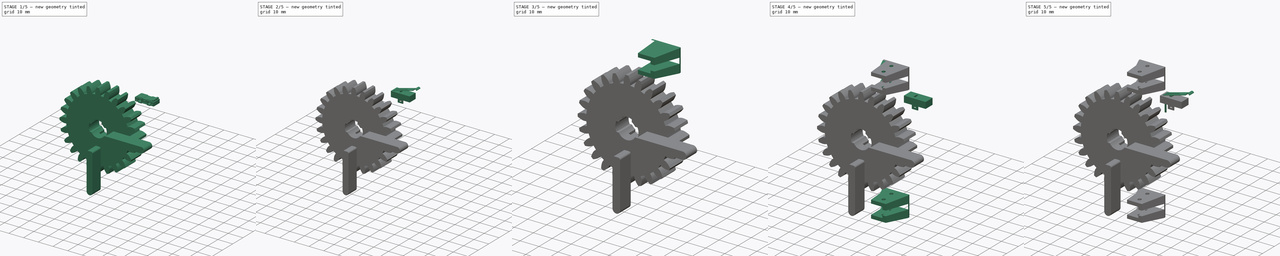
[diagram: build sequence overview — one tinted view per stage of 5, left to right]
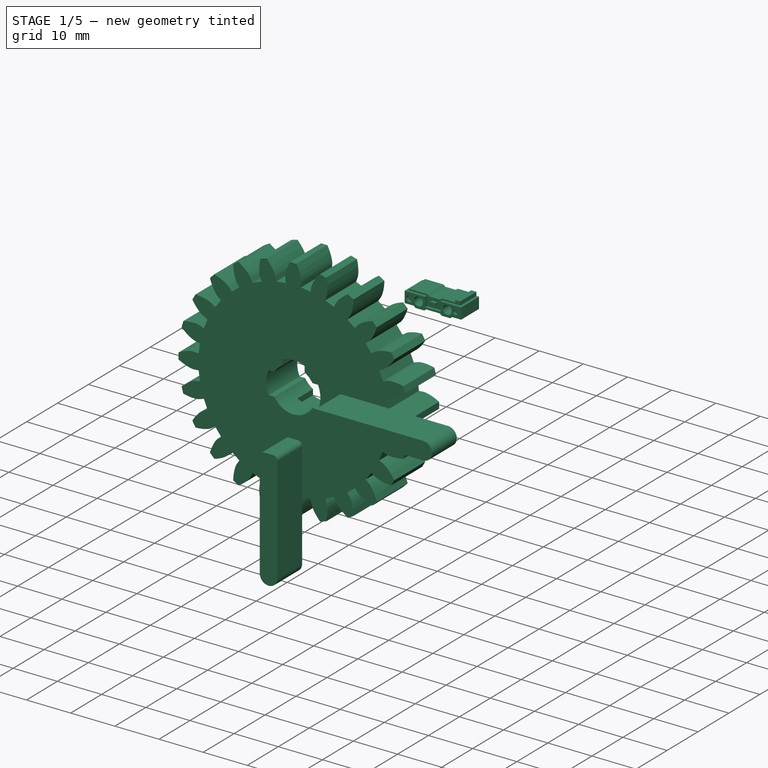
[diagram: stage 1 of 5 — iso view after this stage's code; geometry added in this stage tinted green]
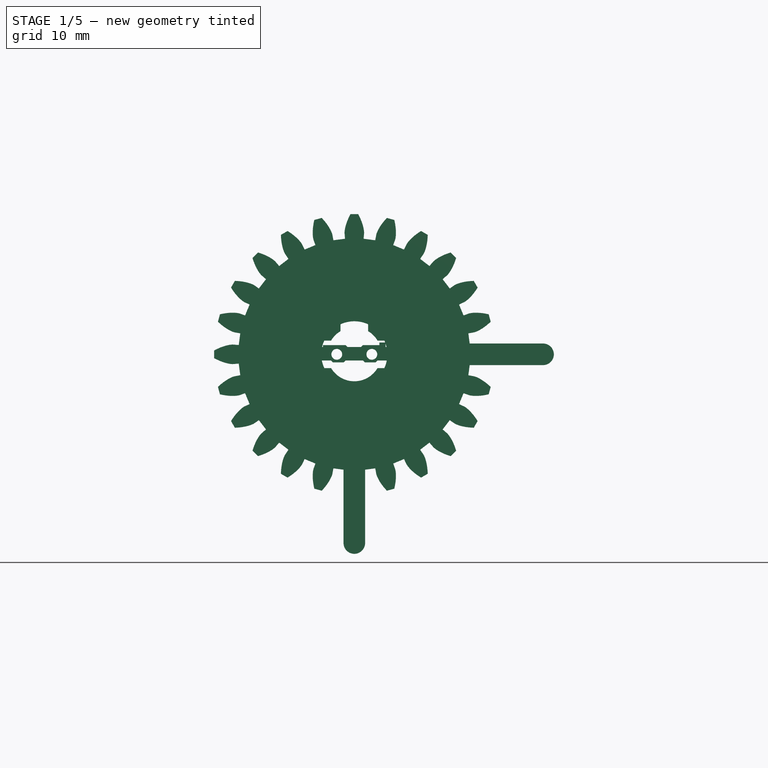
[diagram: stage 1 of 5 — front view after this stage's code; geometry added in this stage tinted green]
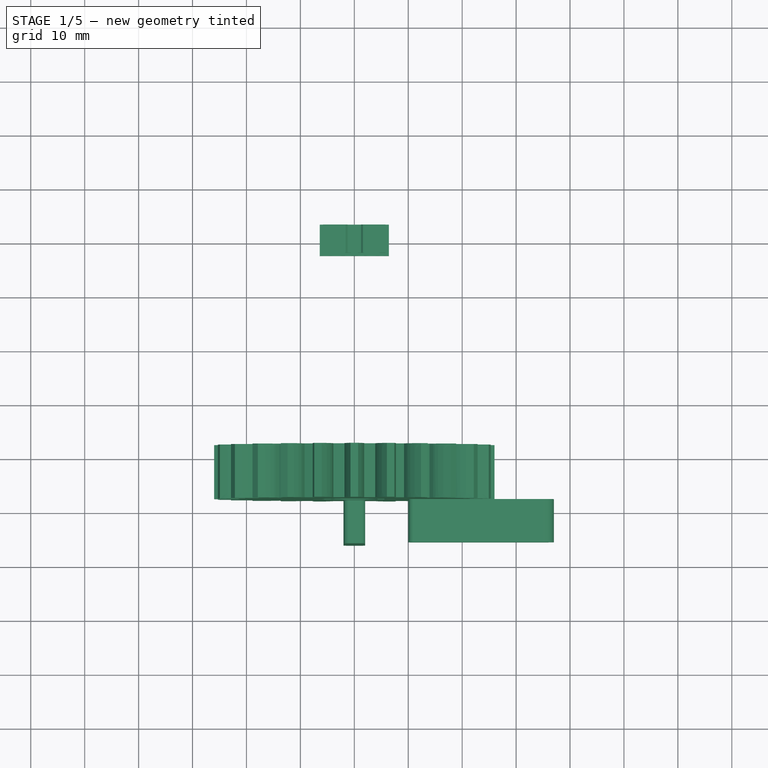
[diagram: stage 1 of 5 — top view after this stage's code; geometry added in this stage tinted green]
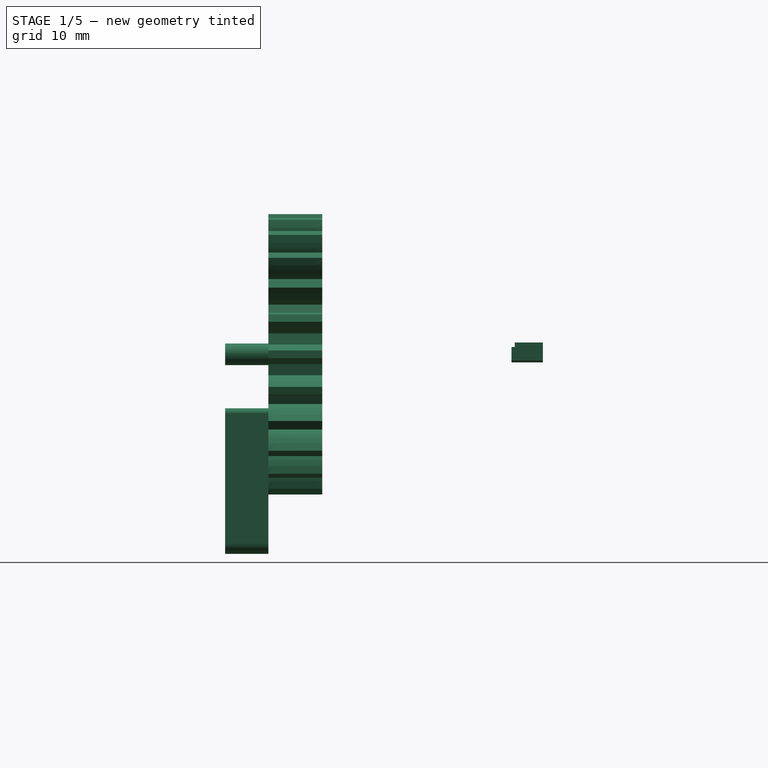
[diagram: stage 1 of 5 — right view after this stage's code; geometry added in this stage tinted green]
FCSTD DOCUMENT  (FreeCAD 1.0R39319 (Git))
Label: gears-v2
License: All rights reserved
objects: Sketcher::SketchObject×42, PartDesign::Pad×25, PartDesign::Body×19, PartDesign::Pocket×17, PartDesign::ShapeBinder×10, PartDesign::SubShapeBinder×3, PartDesign::Draft×3, App::DocumentObjectGroup×3, App::Part×2, PartDesign::Plane×2, PartDesign::FeatureBase×2, Part::Fuse×2, PartDesign::Chamfer×1, PartDesign::Mirrored×1, Part::FeaturePython×1, Part::Cut×1
note: 266 computed .brp shape members not serialized (recipe doc carries the construction recipe); baked Part::Feature solids carry a one-line shape summary decoded from their .brp

FEATURE [Sketcher::SketchObject] Sketch  label="master"
  ArcFitTolerance = 1e-06
  FullyConstrained = true
  MakeInternals = false
  MapMode = 5
  Placement = pos=(0,0,0) rot=(1,0,0;1.5708rad)
  sketch-geometry (22):
    g0: Circle CenterX=-5.5827e-12 CenterY=1.0424e-12 CenterZ=0 NormalX=0 NormalY=0 NormalZ=1 AngleXU=0 Radius=19.5
    g1: GeomPoint [constr] X=-5.5827e-12 Y=1.0424e-12 Z=0
    g2: Circle CenterX=-5.5827e-12 CenterY=1.0424e-12 CenterZ=0 NormalX=0 NormalY=0 NormalZ=1 AngleXU=0 Radius=2.5
    g3: Circle [constr] CenterX=-5.5827e-12 CenterY=1.0424e-12 CenterZ=0 NormalX=0 NormalY=0 NormalZ=1 AngleXU=0 Radius=6.125
    g4: ArcOfCircle CenterX=-5.5827e-12 CenterY=1.0424e-12 CenterZ=0 NormalX=0 NormalY=0 NormalZ=1 AngleXU=0 Radius=5 StartAngle=2.10598 EndAngle=2.60641
    g5: ArcOfCircle CenterX=-5.5827e-12 CenterY=1.0424e-12 CenterZ=0 NormalX=0 NormalY=0 NormalZ=1 AngleXU=0 Radius=6.125 StartAngle=1.1414 EndAngle=2.0002
    g6: LineSegment [constr] StartX=-2.55 StartY=5.56894 StartZ=0 EndX=2.55 EndY=5.56894 EndZ=0
    g7: LineSegment StartX=-2.55 StartY=5.56894 StartZ=0 EndX=-2.55 EndY=4.30087 EndZ=0
    g8: LineSegment StartX=2.55 StartY=5.56894 StartZ=0 EndX=2.55 EndY=4.30087 EndZ=0
    g9: ArcOfCircle CenterX=-5.5827e-12 CenterY=1.0424e-12 CenterZ=0 NormalX=0 NormalY=0 NormalZ=1 AngleXU=0 Radius=5 StartAngle=2.10598 EndAngle=2.60641
    g10: GeomPoint [constr] X=-5.5827e-12 Y=6.125 Z=0
    g11: ArcOfCircle CenterX=-5.5827e-12 CenterY=1.0424e-12 CenterZ=0 NormalX=0 NormalY=0 NormalZ=1 AngleXU=0 Radius=6.125 StartAngle=2.71219 EndAngle=3.57099
    g12: ArcOfCircle CenterX=-5.5827e-12 CenterY=1.0424e-12 CenterZ=0 NormalX=0 NormalY=0 NormalZ=1 AngleXU=0 Radius=6.125 StartAngle=5.85378 EndAngle=6.71259
    g13: LineSegment [constr] StartX=-5.56894 StartY=2.55 StartZ=0 EndX=-5.56894 EndY=-2.55 EndZ=0
    g14: LineSegment [constr] StartX=5.56894 StartY=2.55 StartZ=0 EndX=5.56894 EndY=-2.55 EndZ=0
    g15: LineSegment StartX=5.56894 StartY=2.55 StartZ=0 EndX=4.30087 EndY=2.55 EndZ=0
    g16: LineSegment StartX=5.56894 StartY=-2.55 StartZ=0 EndX=4.30087 EndY=-2.55 EndZ=0
    g17: ArcOfCircle CenterX=-5.5827e-12 CenterY=1.0424e-12 CenterZ=0 NormalX=0 NormalY=0 NormalZ=1 AngleXU=0 Radius=5 StartAngle=3.67678 EndAngle=5.748
    g18: ArcOfCircle CenterX=-5.5827e-12 CenterY=1.0424e-12 CenterZ=0 NormalX=0 NormalY=0 NormalZ=1 AngleXU=0 Radius=5 StartAngle=0.535185 EndAngle=1.03561
    g19: LineSegment StartX=-5.56894 StartY=2.55 StartZ=0 EndX=-4.30087 EndY=2.55 EndZ=0
    g20: LineSegment StartX=-5.56894 StartY=-2.55 StartZ=0 EndX=-4.30087 EndY=-2.55 EndZ=0
    g21: ArcOfCircle CenterX=-5.5827e-12 CenterY=1.0424e-12 CenterZ=0 NormalX=0 NormalY=0 NormalZ=1 AngleXU=0 Radius=5 StartAngle=0.535185 EndAngle=1.03561
  constraints (62):
    c: Diameter(g0) = 39
    c: Coincident(g1,g0)
    c: Diameter(g2) = 5
    c: Coincident(g2,g0)
    c: Diameter(g3) = 12.25  'cir'
    c: Coincident(g3,g0)
    c: Radius(g4) = 5
    c: Coincident(g4,g0)
    c: Coincident(g5,g0)
    c: PointOnObject(g5,g3)
    c: DistanceX(g5,g5) = 5.1
    c: Coincident(g6,g5)
    c: Coincident(g6,g5)
    c: Horizontal(g6)
    c: Coincident(g7,g5)
    c: PointOnObject(g7,g9)
    c: Vertical(g7)
    c: PointOnObject(g8,g3)
    c: Vertical(g8)
    c: PointOnObject(g5,g8)
    c: Coincident(g18,g8)
    c: PointOnObject(g9,g7)
    c: Coincident(g4,g9)
    c: PointOnObject(g10,g3)
    c: Vertical(g10,g0)
    c: Coincident(g11,g0)
    c: PointOnObject(g11,g3)
    c: Coincident(g12,g0)
    c: PointOnObject(g12,g3)
    c: DistanceY(g11,g11) = 5.1
    c: DistanceY(g12,g12) = 5.1
    c: Coincident(g13,g11)
    c: Coincident(g13,g11)
    c: Vertical(g13)
    c: Coincident(g14,g12)
    c: Coincident(g14,g12)
    c: Vertical(g14)
    c: Coincident(g15,g12)
    c: PointOnObject(g15,g18)
    c: Horizontal(g15)
    c: Coincident(g16,g12)
    c: Horizontal(g16)
    c: Equal(g9,g17)
    c: Coincident(g9,g17)
    c: Equal(g4,g18)
    c: PointOnObject(g18,g15)
    c: Coincident(g4,g18)
    c: Coincident(g0,g-1)
    c: Coincident(g19,g11)
    c: PointOnObject(g19,g4)
    c: Horizontal(g19)
    c: Coincident(g20,g11)
    c: Coincident(g20,g17)
    c: Horizontal(g20)
    c: PointOnObject(g4,g7)
    c: PointOnObject(g9,g19)
    c: Equal(g17,g21)
    c: PointOnObject(g21,g15)
    c: Coincident(g17,g21)
    c: PointOnObject(g21,g8)
    c: Coincident(g4,g9)
    c: Coincident(g17,g16)
FEATURE [PartDesign::Pad] Pad
  Direction = (0,-1,2e-16)
  Length = 19.87
  Length2 = 10
  Placement = pos=(0,0,0) rot=(1,0,0;1.5708rad)
  Profile = -> Sketch [Edge10,Edge12,Edge13,Edge14,Edge15,Edge3,Edge4,Edge5,Edge6,Edge7,Edge8,Edge9,Edge2]
  ReferenceAxis = -> Sketch [N_Axis]
  Refine = true
  Suppressed = false
  Type = 0
FEATURE [Sketcher::SketchObject] Sketch022
  ArcFitTolerance = 0
  AttachmentSupport = -> [XZ_Plane001]
  FullyConstrained = true
  MakeInternals = false
  MapMode = 5
  Placement = pos=(0,0,0) rot=(1,0,0;1.5708rad)
  sketch-geometry (24):
    g0: LineSegment StartX=-6.4 StartY=-1.15 StartZ=0 EndX=-4.3 EndY=-1.15 EndZ=0
    g1: LineSegment StartX=-4.3 StartY=-1.15 StartZ=0 EndX=-3.95 EndY=-1.5 EndZ=0
    g2: LineSegment StartX=-3.95 StartY=-1.5 StartZ=0 EndX=-1.95 EndY=-1.5 EndZ=0
    g3: LineSegment StartX=-1.95 StartY=-1.5 StartZ=0 EndX=-1.6 EndY=-1.15 EndZ=0
    g4: LineSegment StartX=-1.6 StartY=-1.15 StartZ=0 EndX=1.6 EndY=-1.15 EndZ=0
    g5: LineSegment StartX=1.6 StartY=-1.15 StartZ=0 EndX=1.95 EndY=-1.5 EndZ=0
    g6: LineSegment StartX=1.95 StartY=-1.5 StartZ=0 EndX=3.95 EndY=-1.5 EndZ=0
    g7: LineSegment StartX=3.95 StartY=-1.5 StartZ=0 EndX=4.3 EndY=-1.15 EndZ=0
    g8: LineSegment StartX=4.3 StartY=-1.15 StartZ=0 EndX=6.4 EndY=-1.15 EndZ=0
    g9: LineSegment StartX=6.4 StartY=-1.15 StartZ=0 EndX=6.4 EndY=1.35 EndZ=0
    g10: LineSegment StartX=6.4 StartY=1.35 StartZ=0 EndX=5.8 EndY=1.35 EndZ=0
    g11: LineSegment StartX=5.8 StartY=1.35 StartZ=0 EndX=5.8 EndY=2.2 EndZ=0
    g12: LineSegment StartX=5.8 StartY=2.2 StartZ=0 EndX=4.65 EndY=2.2 EndZ=0
    g13: LineSegment StartX=4.65 StartY=2.2 StartZ=0 EndX=4.65 EndY=1.7 EndZ=0
    g14: LineSegment StartX=4.65 StartY=1.7 StartZ=0 EndX=1.6 EndY=1.7 EndZ=0
    g15: LineSegment StartX=1.6 StartY=1.7 StartZ=0 EndX=1.25 EndY=1.35 EndZ=0
    g16: LineSegment StartX=1.25 StartY=1.35 StartZ=0 EndX=-1.25 EndY=1.35 EndZ=0
    g17: LineSegment StartX=-1.25 StartY=1.35 StartZ=0 EndX=-1.6 EndY=1.7 EndZ=0
    g18: LineSegment StartX=-1.6 StartY=1.7 StartZ=0 EndX=-5.8 EndY=1.7 EndZ=0
    g19: LineSegment StartX=-5.8 StartY=1.7 StartZ=0 EndX=-5.8 EndY=1.35 EndZ=0
    g20: LineSegment StartX=-5.8 StartY=1.35 StartZ=0 EndX=-6.4 EndY=1.35 EndZ=0
    g21: LineSegment StartX=-6.4 StartY=1.35 StartZ=0 EndX=-6.4 EndY=-1.15 EndZ=0
    g22: Circle CenterX=-3.25 CenterY=0 CenterZ=0 NormalX=0 NormalY=0 NormalZ=1 AngleXU=0 Radius=1
    g23: Circle CenterX=3.25 CenterY=0 CenterZ=0 NormalX=0 NormalY=0 NormalZ=1 AngleXU=0 Radius=1
  constraints (73):
    c: Horizontal(g0)
    c: Coincident(g0,g1)
    c: Coincident(g1,g2)
    c: Horizontal(g2)
    c: Coincident(g2,g3)
    c: Coincident(g3,g4)
    c: Horizontal(g4)
    c: Coincident(g4,g5)
    c: Coincident(g5,g6)
    c: Horizontal(g6)
    c: Coincident(g6,g7)
    c: Coincident(g7,g8)
    c: Horizontal(g8)
    c: Coincident(g8,g9)
    c: Coincident(g9,g10)
    c: Horizontal(g10)
    c: Coincident(g10,g11)
    c: Vertical(g11)
    c: Coincident(g11,g12)
    c: Coincident(g12,g13)
    c: Vertical(g13)
    c: Coincident(g13,g14)
    c: Horizontal(g14)
    c: Coincident(g14,g15)
    c: Coincident(g15,g16)
    c: Coincident(g16,g17)
    c: Coincident(g17,g18)
    c: Coincident(g18,g19)
    c: Vertical(g19)
    c: Coincident(g19,g20)
    c: Horizontal(g20)
    c: Coincident(g20,g21)
    c: Coincident(g21,g0)
    c: Vertical(g21)
    c: Vertical(g9)
    c: Horizontal(g18)
    c: Horizontal(g14,g17)
    c: Horizontal(g2,g5)
    c: Diameter(g22) = 2
    c: Horizontal(g16)
    c: DistanceX(g20,g9) = 12.8
    c: Horizontal(g12)
    c: Equal(g23,g22)
    c: Horizontal(g0,g3)
    c: Horizontal(g3,g7)
    c: Equal(g6,g2)
    c: DistanceY(g6,g7) = 0.35
    c: DistanceY(g9,g9) = 2.5
    c: DistanceY(g11,g11) = 0.85
    c: DistanceX(g22,g23) = 6.5
    c: DistanceX(g-1,g23) = 3.25
    c: DistanceX(g20,g20) = 0.6
    c: DistanceX(g12,g12) = 1.15
    c: Angle(g2,g1) = 2.35619
    c: Perpendicular(g3,g1)
    c: Parallel(g1,g5)
    c: Perpendicular(g7,g5)
    c: DistanceY(g13,g13) = 0.5
    c: DistanceY(g15,g14) = 0.35
    c: Parallel(g1,g17)
    c: Perpendicular(g17,g15)
    c: Horizontal(g22,g23)
    c: DistanceX(g2,g2) = 2
    c: DistanceX(g0,g-1) = 6.4
    c: PointOnObject(g22,g-1)
    c: DistanceY(g6,g23) = 1.5
    c: Equal(g0,g8)
    c: DistanceX(g4,g4) = 3.2
    c: DistanceX(g10,g10) = 0.6
    c: Equal(g9,g21)
    c: DistanceX(g18,g18) = 4.2
    c: DistanceX(g16,g16) = 2.5
    c: DistanceY(g-1,g11) = 2.2
FEATURE [PartDesign::Pad] Pad022
  Direction = (0,-1,2e-16)
  Length = 5.8
  Length2 = 100
  Midplane = true
  Placement = pos=(0,0,0) rot=(1,0,0;1.5708rad)
  Profile = -> Sketch022
  ReferenceAxis = -> Sketch022 [N_Axis]
  Suppressed = false
  Type = 0
FEATURE [PartDesign::Body] Body017  label="Pin_C"
  AllowCompound = false
  Group = -> [Sketch025,Pad023,ShapeBinder001,ShapeBinder002]
  Origin = -> Origin029
  Tip = -> Pad023
FEATURE [Sketcher::SketchObject] Sketch026  label="Sketch004"
  ArcFitTolerance = 0
  AttachmentSupport = -> [Pad022]
  ExternalGeometry = -> [Pad022]
  FullyConstrained = true
  MakeInternals = false
  MapMode = 5
  Placement = pos=(0,-2.9,0) rot=(1,0,0;1.5708rad)
  sketch-geometry (14):
    g0: LineSegment StartX=1.75 StartY=1.35 StartZ=0 EndX=1.75 EndY=-0.75 EndZ=0
    g1: LineSegment StartX=1.75 StartY=-0.75 StartZ=0 EndX=-1.75 EndY=-0.75 EndZ=0
    g2: LineSegment StartX=-1.75 StartY=-0.75 StartZ=0 EndX=-1.75 EndY=1.35 EndZ=0
    g3: LineSegment StartX=-0.65 StartY=0.65 StartZ=0 EndX=0.65 EndY=0.65 EndZ=0
    g4: LineSegment StartX=0.65 StartY=0.65 StartZ=0 EndX=0.65 EndY=0.15 EndZ=0
    g5: LineSegment StartX=0.65 StartY=0.15 StartZ=0 EndX=-0.65 EndY=0.15 EndZ=0
    g6: LineSegment StartX=-0.65 StartY=0.15 StartZ=0 EndX=-0.65 EndY=0.65 EndZ=0
    g7: Circle CenterX=-5.3 CenterY=-2e-16 CenterZ=0 NormalX=0 NormalY=0 NormalZ=1 AngleXU=0 Radius=0.7
    g8: Circle CenterX=5.1 CenterY=-2e-16 CenterZ=0 NormalX=0 NormalY=0 NormalZ=1 AngleXU=0 Radius=0.5
    g9: LineSegment StartX=1.75 StartY=1.35 StartZ=0 EndX=6.4 EndY=1.35 EndZ=0
    g10: LineSegment StartX=6.4 StartY=1.35 StartZ=0 EndX=6.4 EndY=2.2 EndZ=0
    g11: LineSegment StartX=6.4 StartY=2.2 StartZ=0 EndX=-6.4 EndY=2.2 EndZ=0
    g12: LineSegment StartX=-6.4 StartY=2.2 StartZ=0 EndX=-6.4 EndY=1.35 EndZ=0
    g13: LineSegment StartX=-6.4 StartY=1.35 StartZ=0 EndX=-1.75 EndY=1.35 EndZ=0
  constraints (40):
    c: Coincident(g0,g1)
    c: Coincident(g1,g2)
    c: Horizontal(g1)
    c: Vertical(g0)
    c: Vertical(g2)
    c: Coincident(g3,g4)
    c: Coincident(g4,g5)
    c: Coincident(g5,g6)
    c: Coincident(g6,g3)
    c: Horizontal(g3)
    c: Horizontal(g5)
    c: Vertical(g4)
    c: Vertical(g6)
    c: DistanceX(g3,g3) = 1.3
    c: DistanceY(g4,g4) = 0.5
    c: DistanceX(g1,g1) = 3.5
    c: DistanceY(g-5,g1) = 0.4
    c: Coincident(g9,g0)
    c: Horizontal(g9)
    c: Coincident(g9,g10)
    c: Vertical(g10)
    c: Coincident(g10,g11)
    c: Horizontal(g11)
    c: Coincident(g11,g12)
    c: Vertical(g12)
    c: Coincident(g12,g13)
    c: Coincident(g13,g2)
    c: Horizontal(g13)
    c: DistanceY(g1,g5) = 0.9
    c: DistanceX(g5,g-1) = 0.65
    c: DistanceX(g-1,g0) = 1.75
    c: Horizontal(g7,g-3)
    c: Horizontal(g8,g-4)
    c: Diameter(g8) = 1
    c: Diameter(g7) = 1.4
    c: DistanceX(g8,g-8) = 1.3
    c: DistanceX(g-7,g7) = 1.1
    c: Horizontal(g10,g-9)
    c: Coincident(g12,g-7)
    c: Coincident(g9,g-8)
FEATURE [PartDesign::Pocket] Pocket009
  BaseFeature = -> Pad022
  Direction = (0,1,-2e-16)
  Length = 0.6
  Length2 = 100
  Placement = pos=(0,0,0) rot=(1,0,0;1.5708rad)
  Profile = -> Sketch026
  ReferenceAxis = -> Sketch026 [N_Axis]
  Suppressed = false
  Type = 0
FEATURE [PartDesign::Body] Body028  label="endstop-case"
  AllowCompound = true
  Group = -> [DatumPlane,Binder010,Binder011,Sketch058,Sketch059,Pad039,Pad040,Draft,Draft001,Draft002,Sketch060,Pocket025,Chamfer001,Mirrored002]
  Origin = -> Origin041
  Tip = -> Mirrored002
FEATURE [Sketcher::SketchObject] Sketch065
  ArcFitTolerance = 1e-06
  AttachmentSupport = -> [XZ_Plane]
  ExternalGeometry = -> [Sketch]
  FullyConstrained = true
  MakeInternals = false
  MapMode = 5
  Placement = pos=(0,0,0) rot=(1,0,0;1.5708rad)
  sketch-geometry (6):
    g0: Circle [constr] CenterX=1.39258e-11 CenterY=-4.24608e-11 CenterZ=0 NormalX=0 NormalY=0 NormalZ=1 AngleXU=0 Radius=5
    g1: Circle [constr] CenterX=1.39258e-11 CenterY=-4.24608e-11 CenterZ=0 NormalX=0 NormalY=0 NormalZ=1 AngleXU=0 Radius=6.125
    g2: ArcOfCircle CenterX=1.39258e-11 CenterY=-4.24608e-11 CenterZ=0 NormalX=0 NormalY=0 NormalZ=1 AngleXU=0 Radius=6.125 StartAngle=4.28299 EndAngle=5.14179
    g3: ArcOfCircle CenterX=1.39258e-11 CenterY=-4.24608e-11 CenterZ=0 NormalX=0 NormalY=0 NormalZ=1 AngleXU=0 Radius=5 StartAngle=4.1772 EndAngle=5.24757
    g4: LineSegment StartX=-2.55 StartY=-4.30087 StartZ=0 EndX=-2.55 EndY=-5.56894 EndZ=0
    g5: LineSegment StartX=2.55 StartY=-4.30087 StartZ=0 EndX=2.55 EndY=-5.56894 EndZ=0
  constraints (17):
    c: Coincident(g0,g-1)
    c: PointOnObject(g-7,g0)
    c: Coincident(g1,g0)
    c: PointOnObject(g-5,g1)
    c: Coincident(g2,g0)
    c: PointOnObject(g2,g1)
    c: Coincident(g3,g0)
    c: PointOnObject(g3,g0)
    c: Coincident(g4,g3)
    c: Coincident(g4,g2)
    c: Coincident(g5,g3)
    c: Coincident(g5,g2)
    c: Vertical(g3,g-4)
    c: Vertical(g-4,g2)
    c: Vertical(g2,g-7)
    c: Vertical(g-7,g3)
    c: Diameter(g1) = 12.25
FEATURE [PartDesign::Pad] Pad044
  BaseFeature = -> Pad
  Direction = (0,-1,2e-16)
  Length = 10
  Length2 = 10
  Offset = 5
  Placement = pos=(0,0,0) rot=(1,0,0;1.5708rad)
  Profile = -> Sketch065
  ReferenceAxis = -> Sketch065 [N_Axis]
  Refine = true
  Suppressed = false
  Type = 3
  UpToFace = -> Pad [Face15]
FEATURE [PartDesign::SubShapeBinder] Binder016
  BindCopyOnChange = 0
  BindMode = 0
  ClaimChildren = false
  Context = -> Body [Binder016.]
  Fuse = false
  MakeFace = true
  OffsetFill = false
  OffsetIntersection = false
  OffsetJoinType = 0
  OffsetOpenResult = false
  PartialLoad = false
  Refine = true
  Relative = true
  _Version = 2
FEATURE [PartDesign::Body] Body  label="arm"
  AllowCompound = false
  Group = -> [Sketch,Pad,Sketch065,Pad044,Binder016]
  Origin = -> Origin
  Placement = pos=(0,-28,0) rot=(0,0,1;0rad)
  Tip = -> Pad044
FEATURE [App::DocumentObjectGroup] Group  label="Base"
  Group = -> [Body]
FEATURE [App::Part] Part  label="switch-max"
  Group = -> [Body015,Body001,Body016,Body017,Body018,Body019,Body020]
  Origin = -> Origin026
  Placement = pos=(12,-43,34) rot=(-0.57735,0.57735,0.57735;4.18879rad)
FEATURE [App::DocumentObjectGroup] Group007  label="endstop switches"
  Group = -> [Part,Part001,Body028]
FEATURE [PartDesign::FeatureBase] Clone
  BaseFeature = -> Body
  Placement = pos=(0,9.85,0) rot=(0,0,1;0rad)
  Suppressed = false
FEATURE [PartDesign::Body] Body006
  AllowCompound = false
  Group = -> [Clone]
  Origin = -> Origin006
  Tip = -> Clone
FEATURE [Part::FeaturePython] InvoluteGear  # WARN: FeaturePython — macro-defined, semantics opaque (R4)
  AttacherType = Attacher::AttachEngine3D
  Placement = pos=(0,0,0) rot=(1,0,0;1.5708rad)
  addendum_diameter = 52
  angular_backlash = 0
  axle_hole = true
  axle_holesize = 6
  backlash = 0
  clearance = 0.25
  double_helix = false
  head = 0
  head_fillet = 0
  height = 10
  helix_angle = 0
  module = 2
  num_teeth = 24
  numpoints = 10
  offset_hole = false
  offset_holeoffset = 10
  offset_holesize = 10
  pitch_diameter = 48
  pressure_angle = 20
  properties_from_tool = false
  reversed_backlash = false
  root_diameter = 43
  root_fillet = 0
  shift = 0
  simple = false
  transverse_pitch = 6.28319
  traverse_module = 2
  undercut = false
  version = 1.3.0
  expr: angular_backlash = backlash / pitch_diameter * 360 ° / pi
FEATURE [Part::Cut] Cut  label="gear-valve"
  Base = -> InvoluteGear
  Placement = pos=(0,-38,0) rot=(0,0,1;0rad)
  Refine = true
  Tool = -> Body006
FEATURE [PartDesign::Plane] DatumPlane001
  AttachmentSupport = -> [Cut]
  Length = 60
  MapMode = 5
  Placement = pos=(0,-48,0) rot=(1,0,0;1.5708rad)
  ResizeMode = 0
  Width = 60
FEATURE [Sketcher::SketchObject] Sketch061
  ArcFitTolerance = 1e-06
  AttachmentSupport = -> [DatumPlane001]
  FullyConstrained = true
  MakeInternals = false
  MapMode = 5
  Placement = pos=(0,-48,0) rot=(1,0,0;1.5708rad)
  sketch-geometry (9):
    g0: LineSegment StartX=-2 StartY=35 StartZ=0 EndX=-2 EndY=11 EndZ=0
    g1: LineSegment StartX=-1 StartY=10 StartZ=0 EndX=1 EndY=10 EndZ=0
    g2: LineSegment StartX=2 StartY=11 StartZ=0 EndX=2 EndY=35 EndZ=0
    g3: ArcOfCircle CenterX=1.5736e-12 CenterY=35 CenterZ=0 NormalX=0 NormalY=0 NormalZ=1 AngleXU=0 Radius=2 StartAngle=6e-16 EndAngle=3.14159
    g4: GeomPoint [constr] X=4.5859e-12 Y=10 Z=0
    g5: ArcOfCircle CenterX=1 CenterY=11 CenterZ=0 NormalX=0 NormalY=0 NormalZ=1 AngleXU=0 Radius=1 StartAngle=4.71239 EndAngle=6.28319
    g6: GeomPoint [constr] X=2 Y=10 Z=0
    g7: ArcOfCircle CenterX=-1 CenterY=11 CenterZ=0 NormalX=0 NormalY=0 NormalZ=1 AngleXU=0 Radius=1 StartAngle=3.14159 EndAngle=4.71239
    g8: GeomPoint [constr] X=-2 Y=10 Z=0
  constraints (22):
    c: Horizontal(g1)
    c: Coincident(g3,g0)
    c: Coincident(g3,g2)
    c: Symmetric(g8,g6,g4)
    c: PointOnObject(g4,g-2)
    c: PointOnObject(g3,g-2)
    c: Horizontal(g2,g0)
    c: DistanceX(g8,g6) = 4
    c: Horizontal(g3,g0)
    c: Distance(g-1,g1) = 10
    c: Distance(g3,g-1) = 35
    c: PointOnObject(g6,g1)
    c: PointOnObject(g6,g2)
    c: Tangent(g1,g5) = -1.5708
    c: Tangent(g2,g5) = -1.5708
    c: PointOnObject(g8,g0)
    c: PointOnObject(g8,g1)
    c: Tangent(g0,g7) = -1.5708
    c: Tangent(g1,g7) = -1.5708
    c: Radius(g3) = 2
    c: Radius(g7) = 1
    c: Radius(g5) = 1
FEATURE [PartDesign::Pad] Pad041
  Direction = (0,-1,2e-16)
  Length = 8
  Length2 = 10
  Placement = pos=(0,-48,0) rot=(1,0,0;1.5708rad)
  Profile = -> Sketch061
  ReferenceAxis = -> Sketch061 [N_Axis]
  Refine = true
  Suppressed = false
  Type = 0
FEATURE [PartDesign::Body] Body029  label="limit-arm"
  AllowCompound = false
  Group = -> [DatumPlane001,Sketch061,Pad041]
  Origin = -> Origin042
  Placement = pos=(0,0,0) rot=(0,1,0;3.14159rad)
  Tip = -> Pad041
FEATURE [PartDesign::FeatureBase] Clone001
  BaseFeature = -> Body029
  Placement = pos=(0,0,0) rot=(0,1,0;3.14159rad)
  Suppressed = false
FEATURE [PartDesign::Body] Body030  label="limitarm2"
  AllowCompound = false
  Group = -> [Clone001]
  Origin = -> Origin043
  Placement = pos=(0,0,0) rot=(0,1,0;4.71239rad)
  Tip = -> Clone001
FEATURE [Part::Fuse] Fusion
  Base = -> Body030
  Refine = true
  Tool = -> Cut
FEATURE [Part::Fuse] Fusion001
  Base = -> Body029
  Refine = true
  Tool = -> Fusion
FEATURE [App::DocumentObjectGroup] Group002  label="Gears"
  Group = -> [Fusion001]
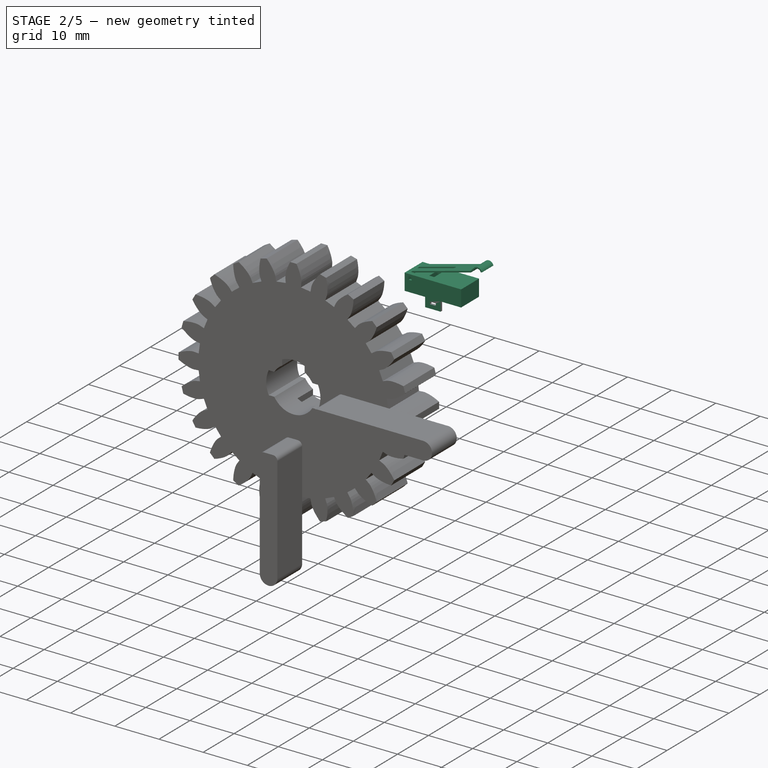
[diagram: stage 2 of 5 — iso view after this stage's code; geometry added in this stage tinted green]
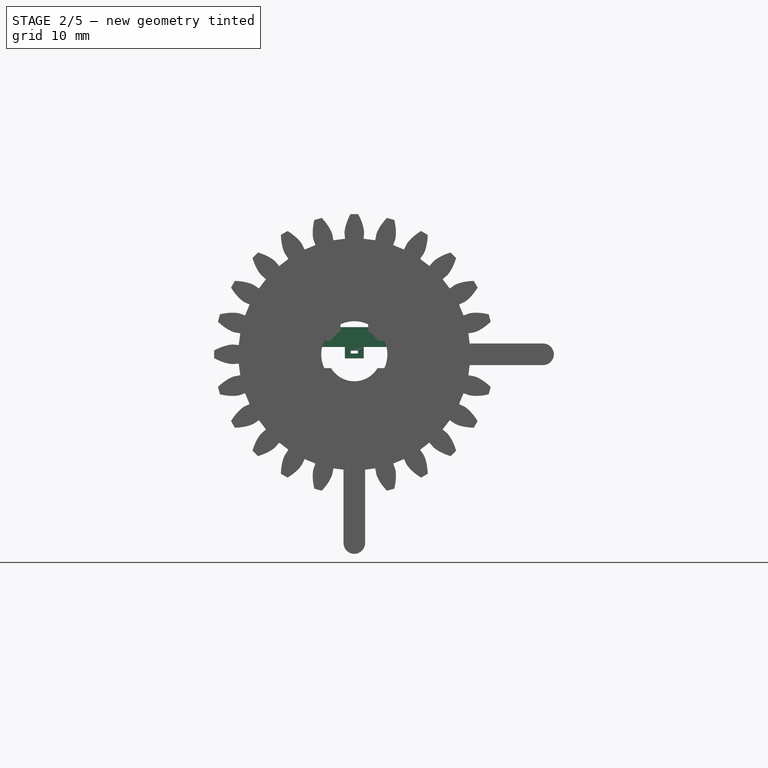
[diagram: stage 2 of 5 — front view after this stage's code; geometry added in this stage tinted green]
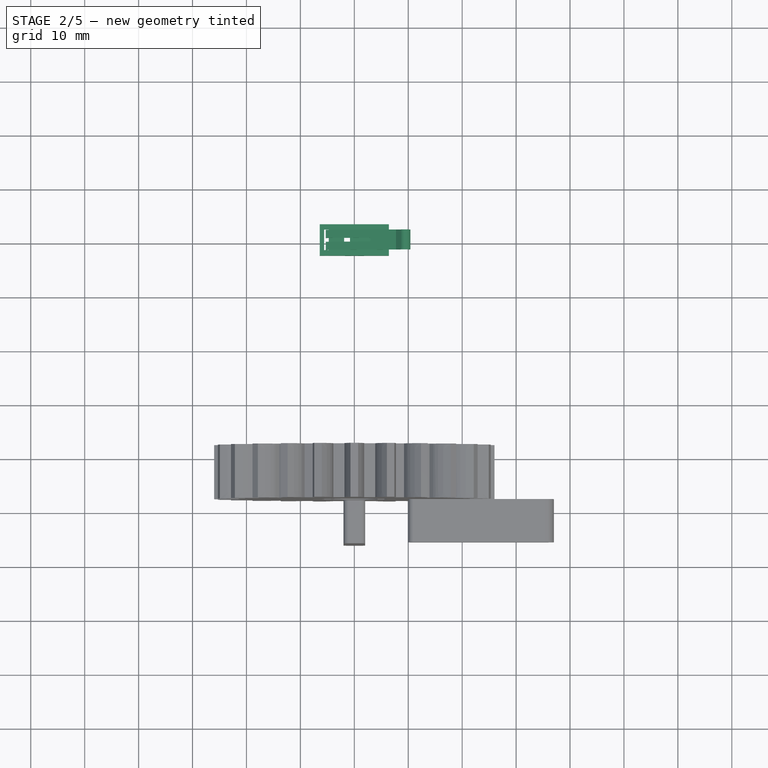
[diagram: stage 2 of 5 — top view after this stage's code; geometry added in this stage tinted green]
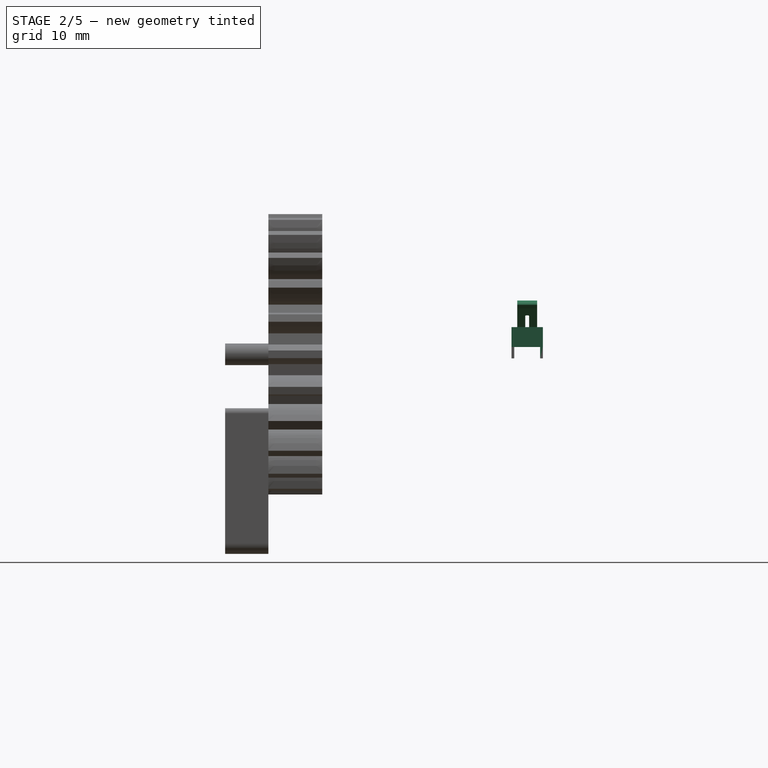
[diagram: stage 2 of 5 — right view after this stage's code; geometry added in this stage tinted green]
FEATURE [Sketcher::SketchObject] Sketch027
  ArcFitTolerance = 0
  AttachmentSupport = -> [Pocket009]
  ExternalGeometry = -> [Pocket009]
  FullyConstrained = true
  MakeInternals = false
  MapMode = 5
  Placement = pos=(0,2.9,0) rot=(-1,0,0;1.5708rad)
  sketch-geometry (14):
    g0: LineSegment StartX=-0.65 StartY=-0.15 StartZ=0 EndX=0.65 EndY=-0.15 EndZ=0
    g1: LineSegment StartX=0.65 StartY=-0.15 StartZ=0 EndX=0.65 EndY=-0.65 EndZ=0
    g2: LineSegment StartX=0.65 StartY=-0.65 StartZ=0 EndX=-0.65 EndY=-0.65 EndZ=0
    g3: LineSegment StartX=-0.65 StartY=-0.65 StartZ=0 EndX=-0.65 EndY=-0.15 EndZ=0
    g4: Circle CenterX=5.3 CenterY=0 CenterZ=0 NormalX=0 NormalY=0 NormalZ=1 AngleXU=0 Radius=0.7
    g5: Circle CenterX=-5.3 CenterY=0 CenterZ=0 NormalX=0 NormalY=0 NormalZ=1 AngleXU=0 Radius=0.7
    g6: LineSegment StartX=1.75 StartY=0.75 StartZ=0 EndX=-1.75 EndY=0.75 EndZ=0
    g7: LineSegment StartX=-1.75 StartY=0.75 StartZ=0 EndX=-1.75 EndY=-1.35 EndZ=0
    g8: LineSegment StartX=-1.75 StartY=-1.35 StartZ=0 EndX=-6.4 EndY=-1.35 EndZ=0
    g9: LineSegment StartX=-6.4 StartY=-1.35 StartZ=0 EndX=-6.4 EndY=-2.2 EndZ=0
    g10: LineSegment StartX=-6.4 StartY=-2.2 StartZ=0 EndX=6.4 EndY=-2.2 EndZ=0
    g11: LineSegment StartX=6.4 StartY=-2.2 StartZ=0 EndX=6.4 EndY=-1.35 EndZ=0
    g12: LineSegment StartX=6.4 StartY=-1.35 StartZ=0 EndX=1.75 EndY=-1.35 EndZ=0
    g13: LineSegment StartX=1.75 StartY=-1.35 StartZ=0 EndX=1.75 EndY=0.75 EndZ=0
  constraints (40):
    c: Coincident(g0,g1)
    c: Coincident(g1,g2)
    c: Coincident(g2,g3)
    c: Coincident(g3,g0)
    c: Horizontal(g0)
    c: Horizontal(g2)
    c: Vertical(g1)
    c: Vertical(g3)
    c: PointOnObject(g4,g-1)
    c: PointOnObject(g5,g-1)
    c: Equal(g5,g4)
    c: Diameter(g4) = 1.4
    c: DistanceX(g4,g-3) = 1.1
    c: DistanceX(g-4,g5) = 1.1
    c: Horizontal(g6)
    c: Coincident(g6,g7)
    c: Vertical(g7)
    c: Coincident(g7,g8)
    c: Horizontal(g8)
    c: Coincident(g8,g9)
    c: Vertical(g9)
    c: Coincident(g9,g10)
    c: Horizontal(g10)
    c: Coincident(g10,g11)
    c: Vertical(g11)
    c: Coincident(g11,g12)
    c: Horizontal(g12)
    c: Coincident(g12,g13)
    c: Coincident(g13,g6)
    c: DistanceX(g0,g0) = 1.3
    c: DistanceX(g-1,g0) = 0.65
    c: DistanceY(g1,g1) = 0.5
    c: DistanceY(g0,g6) = 0.9
    c: DistanceY(g6,g-5) = 0.4
    c: Vertical(g13)
    c: DistanceX(g6,g6) = 3.5
    c: DistanceX(g6,g-1) = 1.75
    c: Coincident(g11,g-3)
    c: Coincident(g-6,g8)
    c: Horizontal(g10,g-7)
FEATURE [PartDesign::Pocket] Pocket010  label="Pocket001"
  BaseFeature = -> Pocket009
  Direction = (0,-1,-2e-16)
  Length = 0.6
  Length2 = 100
  Placement = pos=(0,0,0) rot=(1,0,0;1.5708rad)
  Profile = -> Sketch027
  ReferenceAxis = -> Sketch027 [N_Axis]
  Suppressed = false
  Type = 0
FEATURE [PartDesign::Body] Body015  label="Bottom"
  AllowCompound = false
  Group = -> [Sketch022,Pad022,Sketch026,Pocket009,Sketch027,Pocket010]
  Origin = -> Origin001
  Tip = -> Pocket010
FEATURE [PartDesign::ShapeBinder] ShapeBinder003
  Support = -> [Pocket010]
  TraceSupport = false
FEATURE [Sketcher::SketchObject] Sketch028
  ArcFitTolerance = 0
  AttachmentSupport = -> [XZ_Plane019]
  ExternalGeometry = -> [ShapeBinder003]
  FullyConstrained = true
  MakeInternals = false
  MapMode = 5
  Placement = pos=(0,0,0) rot=(1,0,0;1.5708rad)
  sketch-geometry (12):
    g0: LineSegment StartX=0.65 StartY=0.15 StartZ=0 EndX=-0.65 EndY=0.15 EndZ=0
    g1: LineSegment StartX=-0.65 StartY=0.15 StartZ=0 EndX=-0.65 EndY=0.65 EndZ=0
    g2: LineSegment StartX=-0.65 StartY=0.65 StartZ=0 EndX=0.65 EndY=0.65 EndZ=0
    g3: LineSegment StartX=0.65 StartY=0.65 StartZ=0 EndX=0.65 EndY=0.15 EndZ=0
    g4: LineSegment StartX=6.4 StartY=1.35 StartZ=0 EndX=6.4 EndY=5.05 EndZ=0
    g5: LineSegment StartX=6.4 StartY=5.05 StartZ=0 EndX=-6.4 EndY=5.05 EndZ=0
    g6: LineSegment StartX=-6.4 StartY=5.05 StartZ=0 EndX=-6.4 EndY=1.35 EndZ=0
    g7: LineSegment StartX=-6.4 StartY=1.35 StartZ=0 EndX=-1.75 EndY=1.35 EndZ=0
    g8: LineSegment StartX=-1.75 StartY=1.35 StartZ=0 EndX=-1.75 EndY=-0.75 EndZ=0
    g9: LineSegment StartX=-1.75 StartY=-0.75 StartZ=0 EndX=1.75 EndY=-0.75 EndZ=0
    g10: LineSegment StartX=1.75 StartY=-0.75 StartZ=0 EndX=1.75 EndY=1.35 EndZ=0
    g11: LineSegment StartX=1.75 StartY=1.35 StartZ=0 EndX=6.4 EndY=1.35 EndZ=0
  constraints (31):
    c: Coincident(g0,g1)
    c: Coincident(g1,g2)
    c: Coincident(g2,g3)
    c: Coincident(g3,g0)
    c: Horizontal(g0)
    c: Horizontal(g2)
    c: Vertical(g1)
    c: Vertical(g3)
    c: Coincident(g0,g-5)
    c: Coincident(g1,g-4)
    c: Vertical(g4)
    c: Coincident(g4,g5)
    c: Horizontal(g5)
    c: Coincident(g5,g6)
    c: Vertical(g6)
    c: DistanceY(g4,g4) = 3.7
    c: DistanceY(g-1,g5) = 5.05
    c: Coincident(g4,g-8)
    c: Coincident(g6,g-7)
    c: Coincident(g6,g7)
    c: Horizontal(g7)
    c: Coincident(g7,g8)
    c: Coincident(g8,g-6)
    c: Coincident(g8,g9)
    c: Coincident(g9,g-6)
    c: Coincident(g9,g10)
    c: Vertical(g10)
    c: Coincident(g10,g11)
    c: Coincident(g11,g4)
    c: Horizontal(g11)
    c: Vertical(g8)
FEATURE [PartDesign::Pad] Pad004
  Direction = (0,-1,2e-16)
  Length = 5.8
  Length2 = 100
  Midplane = true
  Placement = pos=(0,0,0) rot=(1,0,0;1.5708rad)
  Profile = -> Sketch028
  ReferenceAxis = -> Sketch028 [N_Axis]
  Suppressed = false
  Type = 0
FEATURE [PartDesign::ShapeBinder] ShapeBinder004
  Placement = pos=(0,0,0) rot=(1,0,0;1.5708rad)
  TraceSupport = false
FEATURE [PartDesign::Body] Body019  label="Button"
  AllowCompound = false
  Group = -> [Sketch029,Pad024,Sketch030,Pocket011,ShapeBinder004]
  Origin = -> Origin031
  Tip = -> Pocket011
FEATURE [Sketcher::SketchObject] Sketch031
  ArcFitTolerance = 0
  AttachmentSupport = -> [XZ_Plane021]
  FullyConstrained = false
  MakeInternals = false
  MapMode = 5
  Placement = pos=(0,0,0) rot=(1,0,0;1.5708rad)
  sketch-geometry (11):
    g0: LineSegment StartX=-5.3 StartY=5.3 StartZ=0 EndX=-5.3 EndY=3.85 EndZ=0
    g1: LineSegment StartX=-5.3 StartY=3.85 StartZ=0 EndX=-5 EndY=3.85 EndZ=0
    g2: LineSegment StartX=-5 StartY=3.85 StartZ=0 EndX=-5 EndY=5.0698 EndZ=0
    g3: LineSegment StartX=-5 StartY=5.0698 StartZ=0 EndX=7.89529 EndY=8.52508 EndZ=0
    g4: LineSegment StartX=-5.3 StartY=5.3 StartZ=0 EndX=7.74 EndY=8.79406 EndZ=0
    g5: ArcOfCircle CenterX=9.36634 CenterY=8.93548 CenterZ=0 NormalX=0 NormalY=0 NormalZ=1 AngleXU=0 Radius=0.75 StartAngle=0.2409 EndAngle=2.35619
    g6: ArcOfCircle CenterX=9.36634 CenterY=8.93548 CenterZ=0 NormalX=0 NormalY=0 NormalZ=1 AngleXU=0 Radius=1.05 StartAngle=0.246872 EndAngle=2.35619
    g7: LineSegment StartX=8.62388 StartY=9.67794 StartZ=0 EndX=7.74 EndY=8.79406 EndZ=0
    g8: LineSegment StartX=8.83601 StartY=9.46581 StartZ=0 EndX=7.89529 EndY=8.52508 EndZ=0
    g9: LineSegment [constr] StartX=7.89529 StartY=8.52508 StartZ=0 EndX=4.10037 EndY=7.50824 EndZ=0
    g10: LineSegment StartX=10.0947 StartY=9.11441 StartZ=0 EndX=10.3845 EndY=9.19207 EndZ=0
  constraints (32):
    c: Vertical(g0)
    c: Coincident(g0,g1)
    c: Coincident(g1,g2)
    c: Vertical(g2)
    c: Coincident(g2,g3)
    c: Coincident(g0,g4)
    c: Horizontal(g1)
    c: Parallel(g4,g3)
    c: Distance(g3,g4) = 0.3
    c: DistanceX(g1,g1) = 0.3
    c: Coincident(g6,g5)
    c: Coincident(g7,g4)
    c: Coincident(g8,g3)
    c: Parallel(g8,g7)
    c: Diameter(g5) = 1.5
    c: Diameter(g6) = 2.1
    c: Coincident(g9,g3)
    c: Parallel(g9,g3)
    c: PointOnObject(g6,g9)
    c: PointOnObject(g5,g9)
    c: Tangent(g6,g7) = -1.5708
    c: Tangent(g5,g8) = -1.5708
    c: Coincident(g10,g5)
    c: Coincident(g10,g6)
    c: Distance(g4) = 13.5
    c: Angle(g2,g3) = 1.8326
    c: DistanceX(g1,g-1) = 5
    c: DistanceY(g-1,g1) = 3.85
    c: DistanceY(g0,g0) = 1.45
    c: Angle(g7,g4) = 2.61799
    c: Distance(g7) = 1.25
    c: DistanceY(g-1,g6) = 9.19207
FEATURE [PartDesign::Pad] Pad025
  Direction = (0,-1,2e-16)
  Length = 3.7
  Length2 = 100
  Midplane = true
  Placement = pos=(0,0,0) rot=(1,0,0;1.5708rad)
  Profile = -> Sketch031
  ReferenceAxis = -> Sketch031 [N_Axis]
  Suppressed = false
  Type = 0
FEATURE [Sketcher::SketchObject] Sketch032
  ArcFitTolerance = 0
  AttachmentSupport = -> [Pad025]
  ExternalGeometry = -> [Pad025]
  FullyConstrained = true
  MakeInternals = false
  MapMode = 5
  Placement = pos=(0,1.7e-15,3.85) rot=(1,0,0;3.14159rad)
  sketch-geometry (4):
    g0: ArcOfCircle CenterX=-5.3 CenterY=0 CenterZ=0 NormalX=0 NormalY=0 NormalZ=1 AngleXU=0 Radius=0.35 StartAngle=1.5708 EndAngle=4.71239
    g1: ArcOfCircle CenterX=2.7 CenterY=0 CenterZ=0 NormalX=0 NormalY=0 NormalZ=1 AngleXU=0 Radius=0.35 StartAngle=4.71239 EndAngle=7.85398
    g2: LineSegment StartX=-5.3 StartY=-0.35 StartZ=0 EndX=2.7 EndY=-0.35 EndZ=0
    g3: LineSegment StartX=2.7 StartY=0.35 StartZ=0 EndX=-5.3 EndY=0.35 EndZ=0
  constraints (10):
    c: Tangent(g0,g2) = -1.5708
    c: Tangent(g2,g1) = -1.5708
    c: Tangent(g1,g3) = -1.5708
    c: Tangent(g3,g0) = -1.5708
    c: Equal(g0,g1)
    c: PointOnObject(g0,g-1)
    c: PointOnObject(g1,g-1)
    c: Diameter(g1) = 0.7
    c: DistanceX(g3,g3) = 8
    c: PointOnObject(g0,g-3)
FEATURE [PartDesign::Pocket] Pocket012
  BaseFeature = -> Pad025
  Direction = (0,0,1)
  Length = 5
  Length2 = 100
  Placement = pos=(0,0,0) rot=(1,0,0;1.5708rad)
  Profile = -> Sketch032
  ReferenceAxis = -> Sketch032 [N_Axis]
  Suppressed = false
  Type = 1
FEATURE [Sketcher::SketchObject] Sketch033
  ArcFitTolerance = 0
  AttachmentSupport = -> [Pocket012]
  ExternalGeometry = -> [Pocket012]
  FullyConstrained = true
  MakeInternals = false
  MapMode = 5
  Placement = pos=(0,-1.85,0) rot=(1,0,0;1.5708rad)
  sketch-geometry (4):
    g0: LineSegment StartX=-5 StartY=3.85 StartZ=0 EndX=-5.3 EndY=3.85 EndZ=0
    g1: LineSegment StartX=-5.3 StartY=3.85 StartZ=0 EndX=-5.3 EndY=4.55 EndZ=0
    g2: LineSegment StartX=-5.3 StartY=4.55 StartZ=0 EndX=-5 EndY=4.55 EndZ=0
    g3: LineSegment StartX=-5 StartY=4.55 StartZ=0 EndX=-5 EndY=3.85 EndZ=0
  constraints (11):
    c: Coincident(g0,g1)
    c: Coincident(g1,g2)
    c: Coincident(g2,g3)
    c: Coincident(g3,g0)
    c: Horizontal(g0)
    c: Horizontal(g2)
    c: Vertical(g1)
    c: Vertical(g3)
    c: Coincident(g0,g-4)
    c: PointOnObject(g1,g-3)
    c: DistanceY(g1,g1) = 0.7
FEATURE [PartDesign::Pad] Pad026
  BaseFeature = -> Pocket012
  Direction = (0,-1,2e-16)
  Length = 0.5
  Length2 = 100
  Placement = pos=(0,0,0) rot=(1,0,0;1.5708rad)
  Profile = -> Sketch033
  ReferenceAxis = -> Sketch033 [N_Axis]
  Suppressed = false
  Type = 0
FEATURE [PartDesign::Body] Body020  label="Lever"
  AllowCompound = false
  Group = -> [Sketch031,Pad025,Sketch032,Pocket012,Sketch033,Pad026,Sketch034,Pad027]
  Origin = -> Origin032
  Tip = -> Pad027
FEATURE [Sketcher::SketchObject] Sketch035
  ArcFitTolerance = 0
  AttachmentSupport = -> [Pad004]
  ExternalGeometry = -> [Pad004]
  FullyConstrained = true
  MakeInternals = false
  MapMode = 5
  Placement = pos=(0,-3e-16,-0.75) rot=(1,0,0;3.14159rad)
  sketch-geometry (9):
    g0: LineSegment StartX=-5.9 StartY=2.4 StartZ=0 EndX=-5.9 EndY=-2.4 EndZ=0
    g1: LineSegment StartX=-5.9 StartY=-2.4 StartZ=0 EndX=5.9 EndY=-2.4 EndZ=0
    g2: LineSegment StartX=5.9 StartY=-2.4 StartZ=0 EndX=5.9 EndY=2.4 EndZ=0
    g3: LineSegment StartX=5.9 StartY=2.4 StartZ=0 EndX=-5.9 EndY=2.4 EndZ=0
    g4: GeomPoint [constr] X=0 Y=0 Z=0
    g5: LineSegment [constr] StartX=5.9 StartY=-2.4 StartZ=0 EndX=6.4 EndY=-2.4 EndZ=0
    g6: LineSegment [constr] StartX=6.4 StartY=-2.4 StartZ=0 EndX=6.4 EndY=-2.9 EndZ=0
    g7: LineSegment [constr] StartX=6.4 StartY=-2.9 StartZ=0 EndX=5.9 EndY=-2.9 EndZ=0
    g8: LineSegment [constr] StartX=5.9 StartY=-2.9 StartZ=0 EndX=5.9 EndY=-2.4 EndZ=0
  constraints (22):
    c: Coincident(g0,g1)
    c: Coincident(g1,g2)
    c: Coincident(g2,g3)
    c: Coincident(g3,g0)
    c: Horizontal(g1)
    c: Horizontal(g3)
    c: Vertical(g0)
    c: Vertical(g2)
    c: Symmetric(g1,g0,g4)
    c: Coincident(g4,g-1)
    c: Coincident(g5,g6)
    c: Coincident(g6,g7)
    c: Coincident(g7,g8)
    c: Coincident(g8,g5)
    c: Horizontal(g5)
    c: Horizontal(g7)
    c: Vertical(g6)
    c: Vertical(g8)
    c: Coincident(g5,g1)
    c: Coincident(g6,g-3)
    c: Equal(g5,g6)
    c: DistanceX(g7,g7) = 0.5
FEATURE [PartDesign::Pocket] Pocket013
  BaseFeature = -> Pad004
  Direction = (0,0,1)
  Length = 5.15
  Length2 = 5
  Placement = pos=(0,0,0) rot=(1,0,0;1.5708rad)
  Profile = -> Sketch035
  ReferenceAxis = -> Sketch035 [N_Axis]
  Suppressed = false
  Type = 0
FEATURE [Sketcher::SketchObject] Sketch036
  ArcFitTolerance = 0
  AttachmentSupport = -> [Pocket013]
  FullyConstrained = true
  MakeInternals = false
  MapMode = 5
  Placement = pos=(0,2.2e-15,5.05) rot=(0,0,1;3.14159rad)
  sketch-geometry (5):
    g0: LineSegment StartX=0.8 StartY=-1.325 StartZ=0 EndX=0.8 EndY=1.325 EndZ=0
    g1: LineSegment StartX=0.8 StartY=1.325 StartZ=0 EndX=1.9 EndY=1.325 EndZ=0
    g2: LineSegment StartX=1.9 StartY=1.325 StartZ=0 EndX=1.9 EndY=-1.325 EndZ=0
    g3: LineSegment StartX=1.9 StartY=-1.325 StartZ=0 EndX=0.8 EndY=-1.325 EndZ=0
    g4: GeomPoint [constr] X=1.35 Y=0 Z=0
  constraints (13):
    c: Coincident(g0,g1)
    c: Coincident(g1,g2)
    c: Coincident(g2,g3)
    c: Coincident(g3,g0)
    c: Horizontal(g1)
    c: Horizontal(g3)
    c: Vertical(g0)
    c: Vertical(g2)
    c: Symmetric(g1,g0,g4)
    c: PointOnObject(g4,g-1)
    c: DistanceX(g1,g1) = 1.1
    c: DistanceY(g2,g2) = 2.65
    c: DistanceX(g0) = 0.8
FEATURE [PartDesign::Pocket] Pocket014
  BaseFeature = -> Pocket013
  Direction = (0,0,-1)
  Length = 5
  Length2 = 5
  Placement = pos=(0,0,0) rot=(1,0,0;1.5708rad)
  Profile = -> Sketch036
  ReferenceAxis = -> Sketch036 [N_Axis]
  Suppressed = false
  Type = 2
FEATURE [Sketcher::SketchObject] Sketch037
  ArcFitTolerance = 0
  AttachmentSupport = -> [Pocket014]
  ExternalGeometry = -> [Pocket014]
  FullyConstrained = true
  MakeInternals = false
  MapMode = 5
  Placement = pos=(0,0,4.4) rot=(1,0,0;3.14159rad)
  sketch-geometry (8):
    g0: LineSegment StartX=-2.6 StartY=-2.4 StartZ=0 EndX=-1.9 EndY=-2.4 EndZ=0
    g1: LineSegment StartX=-1.9 StartY=-2.4 StartZ=0 EndX=-1.9 EndY=2.4 EndZ=0
    g2: LineSegment StartX=-1.9 StartY=2.4 StartZ=0 EndX=-2.6 EndY=2.4 EndZ=0
    g3: LineSegment StartX=-2.6 StartY=2.4 StartZ=0 EndX=-2.6 EndY=-2.4 EndZ=0
    g4: LineSegment StartX=-0.8 StartY=2.4 StartZ=0 EndX=-0.1 EndY=2.4 EndZ=0
    g5: LineSegment StartX=-0.1 StartY=2.4 StartZ=0 EndX=-0.1 EndY=-2.4 EndZ=0
    g6: LineSegment StartX=-0.1 StartY=-2.4 StartZ=0 EndX=-0.8 EndY=-2.4 EndZ=0
    g7: LineSegment StartX=-0.8 StartY=-2.4 StartZ=0 EndX=-0.8 EndY=2.4 EndZ=0
  constraints (24):
    c: Coincident(g0,g1)
    c: Coincident(g1,g2)
    c: Coincident(g2,g3)
    c: Coincident(g3,g0)
    c: Horizontal(g0)
    c: Horizontal(g2)
    c: Vertical(g1)
    c: Vertical(g3)
    c: PointOnObject(g0,g-3)
    c: PointOnObject(g1,g-6)
    c: Coincident(g4,g5)
    c: Coincident(g5,g6)
    c: Coincident(g6,g7)
    c: Coincident(g7,g4)
    c: Horizontal(g4)
    c: Horizontal(g6)
    c: Vertical(g5)
    c: Vertical(g7)
    c: PointOnObject(g4,g-6)
    c: PointOnObject(g5,g-3)
    c: Vertical(g-5,g4)
    c: Equal(g4,g2)
    c: Vertical(g1,g-4)
    c: DistanceX(g2,g2) = 0.7
FEATURE [PartDesign::Pad] Pad028
  BaseFeature = -> Pocket014
  Direction = (0,0,-1)
  Length = 0.8
  Length2 = 10
  Placement = pos=(0,0,0) rot=(1,0,0;1.5708rad)
  Profile = -> Sketch037
  ReferenceAxis = -> Sketch037 [N_Axis]
  Suppressed = false
  Type = 0
FEATURE [Sketcher::SketchObject] Sketch038
  ArcFitTolerance = 0
  AttachmentSupport = -> [Pad028]
  ExternalGeometry = -> [Pad028]
  FullyConstrained = true
  MakeInternals = false
  MapMode = 5
  Placement = pos=(0,2.2e-15,5.05) rot=(0,0,1;3.14159rad)
  sketch-geometry (5):
    g0: LineSegment StartX=4.75 StartY=-1.9 StartZ=0 EndX=4.75 EndY=1.9 EndZ=0
    g1: LineSegment StartX=4.75 StartY=1.9 StartZ=0 EndX=5.6 EndY=1.9 EndZ=0
    g2: LineSegment StartX=5.6 StartY=1.9 StartZ=0 EndX=5.6 EndY=-1.9 EndZ=0
    g3: LineSegment StartX=5.6 StartY=-1.9 StartZ=0 EndX=4.75 EndY=-1.9 EndZ=0
    g4: GeomPoint [constr] X=5.175 Y=0 Z=0
  constraints (13):
    c: Coincident(g0,g1)
    c: Coincident(g1,g2)
    c: Coincident(g2,g3)
    c: Coincident(g3,g0)
    c: Horizontal(g1)
    c: Horizontal(g3)
    c: Vertical(g0)
    c: Vertical(g2)
    c: Symmetric(g1,g0,g4)
    c: PointOnObject(g4,g-1)
    c: DistanceX(g1,g-3) = 0.8
    c: DistanceY(g2,g2) = 3.8
    c: DistanceX(g1,g1) = 0.85
FEATURE [PartDesign::Pocket] Pocket015  label="Pocket010"
  BaseFeature = -> Pad028
  Direction = (0,0,-1)
  Length = 5
  Length2 = 5
  Placement = pos=(0,0,0) rot=(1,0,0;1.5708rad)
  Profile = -> Sketch038
  ReferenceAxis = -> Sketch038 [N_Axis]
  Suppressed = false
  Type = 2
FEATURE [Sketcher::SketchObject] Sketch039
  ArcFitTolerance = 0
  AttachmentSupport = -> [Pocket015]
  ExternalGeometry = -> [Pocket015]
  FullyConstrained = true
  MakeInternals = false
  MapMode = 5
  Placement = pos=(0,-2.9,0) rot=(1,0,0;1.5708rad)
  sketch-geometry (4):
    g0: LineSegment StartX=-5.5 StartY=4.55 StartZ=0 EndX=-4.8 EndY=4.55 EndZ=0
    g1: LineSegment StartX=-4.8 StartY=4.55 StartZ=0 EndX=-4.8 EndY=3.85 EndZ=0
    g2: LineSegment StartX=-4.8 StartY=3.85 StartZ=0 EndX=-5.5 EndY=3.85 EndZ=0
    g3: LineSegment StartX=-5.5 StartY=3.85 StartZ=0 EndX=-5.5 EndY=4.55 EndZ=0
  constraints (12):
    c: Coincident(g0,g1)
    c: Coincident(g1,g2)
    c: Coincident(g2,g3)
    c: Coincident(g3,g0)
    c: Horizontal(g0)
    c: Horizontal(g2)
    c: Vertical(g1)
    c: Vertical(g3)
    c: Equal(g1,g0)
    c: DistanceX(g2,g2) = 0.7
    c: DistanceY(g0,g-3) = 0.5
    c: DistanceX(g-3,g0) = 0.9
FEATURE [PartDesign::Pocket] Pocket016
  BaseFeature = -> Pocket015
  Direction = (0,1,-2e-16)
  Length = 5
  Length2 = 5
  Placement = pos=(0,0,0) rot=(1,0,0;1.5708rad)
  Profile = -> Sketch039
  ReferenceAxis = -> Sketch039 [N_Axis]
  Suppressed = false
  Type = 1
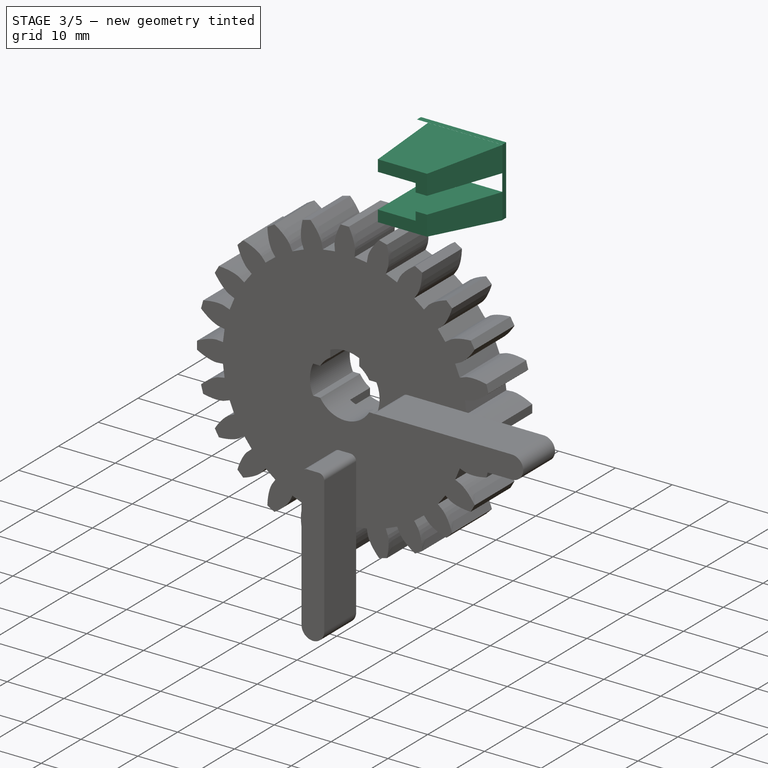
[diagram: stage 3 of 5 — iso view after this stage's code; geometry added in this stage tinted green]
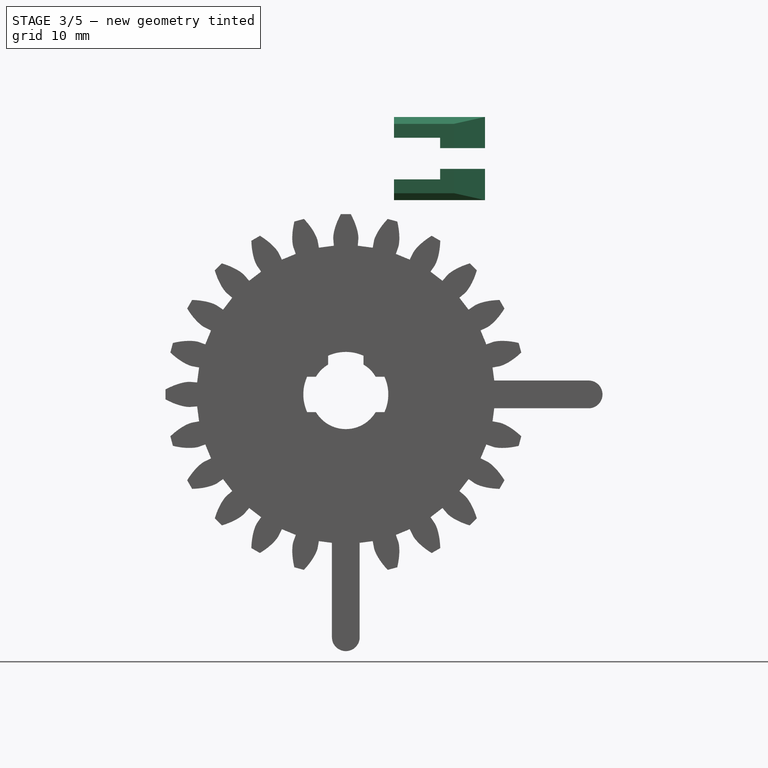
[diagram: stage 3 of 5 — front view after this stage's code; geometry added in this stage tinted green]
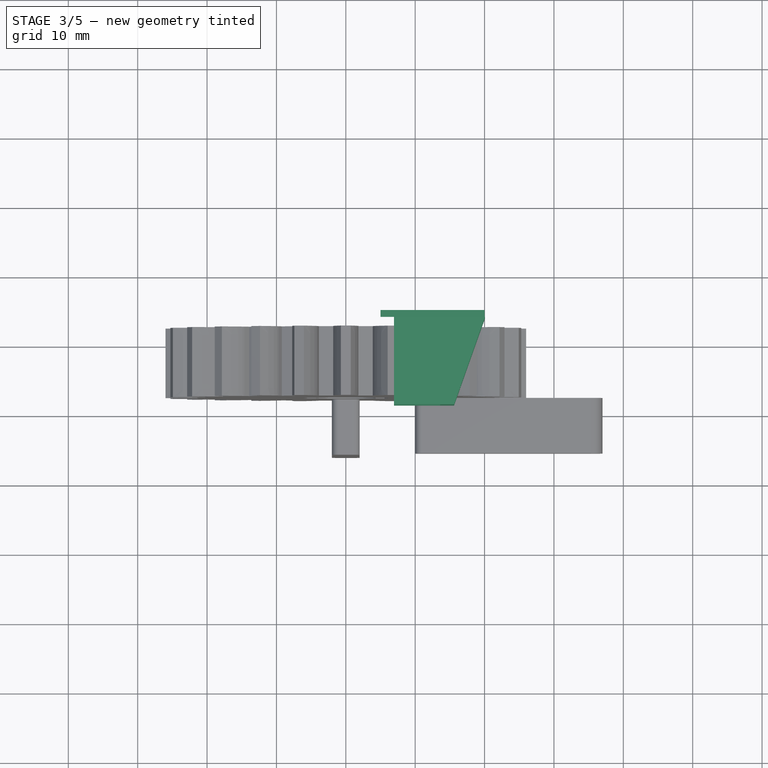
[diagram: stage 3 of 5 — top view after this stage's code; geometry added in this stage tinted green]
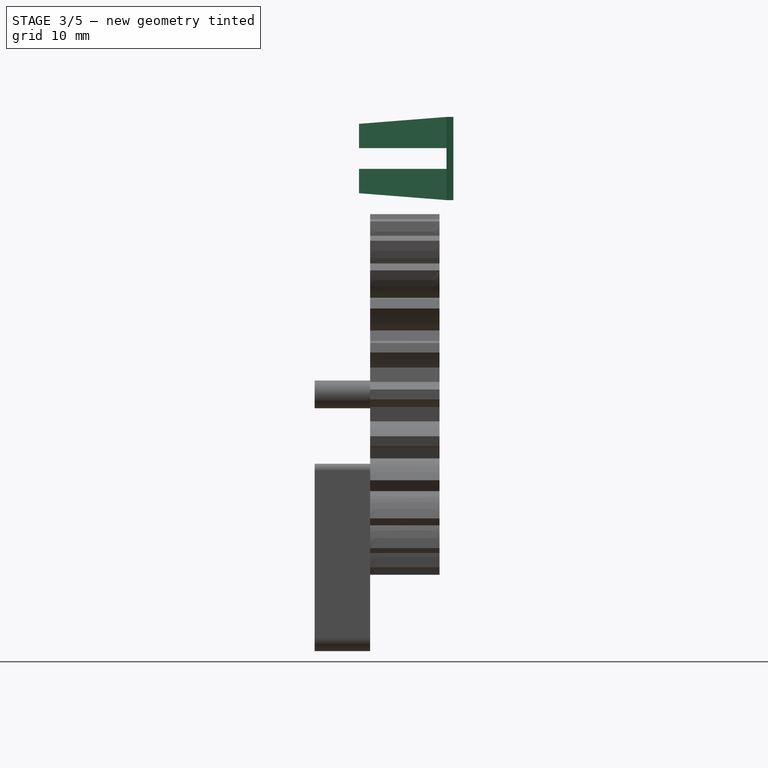
[diagram: stage 3 of 5 — right view after this stage's code; geometry added in this stage tinted green]
FEATURE [Sketcher::SketchObject] Sketch023
  ArcFitTolerance = 0
  AttachmentSupport = -> [XZ_Plane016]
  FullyConstrained = true
  MakeInternals = false
  MapMode = 5
  Placement = pos=(0,0,0) rot=(1,0,0;1.5708rad)
  sketch-geometry (10):
    g0: LineSegment StartX=5.48 StartY=-4.6 StartZ=0 EndX=5.48 EndY=4.6 EndZ=0
    g1: LineSegment StartX=5.48 StartY=4.6 StartZ=0 EndX=2.68 EndY=4.6 EndZ=0
    g2: LineSegment StartX=2.68 StartY=4.6 StartZ=0 EndX=2.68 EndY=3.8 EndZ=0
    g3: LineSegment StartX=2.68 StartY=3.8 StartZ=0 EndX=2.98 EndY=3.8 EndZ=0
    g4: LineSegment StartX=2.98 StartY=3.8 StartZ=0 EndX=2.98 EndY=3.7 EndZ=0
    g5: LineSegment StartX=2.98 StartY=3.7 StartZ=0 EndX=3.48 EndY=3.7 EndZ=0
    g6: LineSegment StartX=3.48 StartY=3.7 StartZ=0 EndX=3.48 EndY=3.8 EndZ=0
    g7: LineSegment StartX=3.48 StartY=3.8 StartZ=0 EndX=4.68 EndY=3.8 EndZ=0
    g8: LineSegment StartX=4.68 StartY=3.8 StartZ=0 EndX=4.68 EndY=-4.6 EndZ=0
    g9: LineSegment StartX=4.68 StartY=-4.6 StartZ=0 EndX=5.48 EndY=-4.6 EndZ=0
  constraints (31):
    c: Vertical(g0)
    c: DistanceY(g0,g0) = 9.2
    c: Coincident(g0,g1)
    c: Horizontal(g1)
    c: Coincident(g1,g2)
    c: Vertical(g2)
    c: Coincident(g2,g3)
    c: Coincident(g3,g4)
    c: Vertical(g4)
    c: Coincident(g4,g5)
    c: Horizontal(g5)
    c: Coincident(g5,g6)
    c: Coincident(g6,g7)
    c: Horizontal(g7)
    c: Coincident(g7,g8)
    c: Vertical(g8)
    c: Coincident(g8,g9)
    c: Coincident(g9,g0)
    c: Horizontal(g9)
    c: DistanceX(g9,g9) = 0.8
    c: Horizontal(g3)
    c: Horizontal(g3,g6)
    c: Vertical(g6)
    c: Equal(g9,g2)
    c: DistanceY(g-1,g0) = 4.6
    c: DistanceX(g1,g1) = 2.8
    c: DistanceX(g3,g3) = 0.3
    c: DistanceX(g7,g7) = 1.2
    c: DistanceY(g6,g6) = 0.1
    c: DistanceX(g-1,g8) = 4.68
    c: DistanceY(g0,g-1) = 4.6
FEATURE [PartDesign::Pad] Pad001
  Direction = (0,-1,2e-16)
  Length = 0.45
  Length2 = 100
  Midplane = true
  Placement = pos=(0,0,0) rot=(1,0,0;1.5708rad)
  Profile = -> Sketch023
  ReferenceAxis = -> Sketch023 [N_Axis]
  Suppressed = false
  Type = 0
FEATURE [PartDesign::Body] Body001  label="Pin_NC"
  AllowCompound = false
  Group = -> [Sketch023,Pad001]
  Origin = -> Origin027
  Tip = -> Pad001
FEATURE [PartDesign::ShapeBinder] ShapeBinder
  Placement = pos=(0,-0.225,0) rot=(0,0,1;0rad)
  Support = -> [Pad001]
  TraceSupport = false
FEATURE [Sketcher::SketchObject] Sketch024
  ArcFitTolerance = 0
  AttachmentSupport = -> [XZ_Plane017]
  ExternalGeometry = -> [ShapeBinder]
  FullyConstrained = true
  MakeInternals = false
  MapMode = 5
  Placement = pos=(0,0,0) rot=(1,0,0;1.5708rad)
  sketch-geometry (12):
    g0: LineSegment StartX=0.4 StartY=-4.6 StartZ=0 EndX=-0.4 EndY=-4.6 EndZ=0
    g1: LineSegment StartX=-0.4 StartY=-4.6 StartZ=0 EndX=-0.4 EndY=0.909572 EndZ=0
    g2: LineSegment StartX=0.4 StartY=0.457892 StartZ=0 EndX=2.84795 EndY=1.20543 EndZ=0
    g3: LineSegment StartX=2.84795 StartY=1.20543 StartZ=0 EndX=3.48 EndY=1.20543 EndZ=0
    g4: LineSegment StartX=3.48 StartY=1.20543 StartZ=0 EndX=3.48 EndY=3.06272 EndZ=0
    g5: LineSegment StartX=3.48 StartY=3.06272 StartZ=0 EndX=2.98 EndY=3.06272 EndZ=0
    g6: LineSegment StartX=2.98 StartY=3.06272 StartZ=0 EndX=2.98 EndY=2.48242 EndZ=0
    g7: LineSegment StartX=2.98 StartY=2.48242 StartZ=0 EndX=2.48712 EndY=2.48242 EndZ=0
    g8: LineSegment StartX=2.48712 StartY=2.48242 StartZ=0 EndX=2.48712 EndY=1.53533 EndZ=0
    g9: LineSegment StartX=2.48712 StartY=1.53533 StartZ=0 EndX=0.437957 EndY=0.909572 EndZ=0
    g10: LineSegment StartX=0.437957 StartY=0.909572 StartZ=0 EndX=-0.4 EndY=0.909572 EndZ=0
    g11: LineSegment StartX=0.4 StartY=-4.6 StartZ=0 EndX=0.4 EndY=0.457892 EndZ=0
  constraints (32):
    c: Coincident(g0,g1)
    c: Horizontal(g0)
    c: Vertical(g1)
    c: Equal(g0,g-5)
    c: DistanceX(g1,g-1) = 0.4
    c: Coincident(g2,g3)
    c: Horizontal(g3)
    c: Coincident(g3,g4)
    c: Vertical(g4)
    c: Coincident(g4,g5)
    c: Coincident(g5,g6)
    c: Vertical(g6)
    c: Coincident(g6,g7)
    c: Coincident(g7,g8)
    c: Vertical(g8)
    c: Coincident(g8,g9)
    c: Coincident(g9,g10)
    c: Coincident(g10,g1)
    c: Horizontal(g7)
    c: Horizontal(g5)
    c: Equal(g5,g-3)
    c: Vertical(g4,g-3)
    c: Parallel(g9,g2)
    c: Horizontal(g10)
    c: Block(g8)
    c: Block(g9)
    c: Block(g2)
    c: Block(g4)
    c: Horizontal(g-5,g0)
    c: Coincident(g11,g0)
    c: Coincident(g11,g2)
    c: Vertical(g11)
FEATURE [PartDesign::Pad] Pad002
  Direction = (0,-1,2e-16)
  Length = 0.45
  Length2 = 100
  Midplane = true
  Placement = pos=(0,0,0) rot=(1,0,0;1.5708rad)
  Profile = -> Sketch024
  ReferenceAxis = -> Sketch024 [N_Axis]
  Suppressed = false
  Type = 0
FEATURE [PartDesign::Body] Body016  label="Pin_NO"
  AllowCompound = false
  Group = -> [Sketch024,Pad002,ShapeBinder]
  Origin = -> Origin028
  Tip = -> Pad002
FEATURE [PartDesign::ShapeBinder] ShapeBinder001
  Placement = pos=(0,-0.225,0) rot=(0,0,1;0rad)
  Support = -> [Pad001]
  TraceSupport = false
FEATURE [PartDesign::ShapeBinder] ShapeBinder002
  Placement = pos=(0,-0.225,0) rot=(0,0,1;0rad)
  Support = -> [Pad002]
  TraceSupport = false
FEATURE [Sketcher::SketchObject] Sketch025
  ArcFitTolerance = 0
  AttachmentSupport = -> [XZ_Plane018]
  ExternalGeometry = -> [ShapeBinder001,ShapeBinder002]
  FullyConstrained = true
  MakeInternals = false
  MapMode = 5
  Placement = pos=(0,0,0) rot=(1,0,0;1.5708rad)
  sketch-geometry (17):
    g0: LineSegment StartX=-5.48 StartY=0.573115 StartZ=0 EndX=-5.48 EndY=-4.6 EndZ=0
    g1: LineSegment StartX=-4.68 StartY=0.531664 StartZ=0 EndX=-4.29703 EndY=1.12608 EndZ=0
    g2: LineSegment StartX=-4.29703 StartY=1.12608 StartZ=0 EndX=-1.12486 EndY=1.12608 EndZ=0
    g3: LineSegment StartX=-1.12486 StartY=1.12608 StartZ=0 EndX=-1.12486 EndY=1.90154 EndZ=0
    g4: LineSegment StartX=-1.12486 StartY=1.90154 StartZ=0 EndX=-0.654846 EndY=1.90154 EndZ=0
    g5: LineSegment StartX=-0.654846 StartY=1.90154 StartZ=0 EndX=-1.19401 EndY=3.7 EndZ=0
    g6: LineSegment StartX=-1.19401 StartY=3.7 StartZ=0 EndX=-1.69401 EndY=3.7 EndZ=0
    g7: LineSegment StartX=-1.69401 StartY=3.7 StartZ=0 EndX=-1.69401 EndY=2.23443 EndZ=0
    g8: LineSegment StartX=-1.69401 StartY=2.23443 StartZ=0 EndX=-4.63708 EndY=2.23443 EndZ=0
    g9: LineSegment StartX=-4.63708 StartY=2.23443 StartZ=0 EndX=-4.63708 EndY=3.7 EndZ=0
    g10: LineSegment StartX=-4.63708 StartY=3.7 StartZ=0 EndX=-5.48708 EndY=3.7 EndZ=0
    g11: LineSegment StartX=-5.48708 StartY=3.7 StartZ=0 EndX=-5.74689 EndY=1.90154 EndZ=0
    g12: LineSegment StartX=-5.74689 StartY=1.90154 StartZ=0 EndX=-5.27688 EndY=1.90154 EndZ=0
    g13: LineSegment StartX=-5.27688 StartY=1.90154 StartZ=0 EndX=-5.27688 EndY=1.09492 EndZ=0
    g14: LineSegment StartX=-5.27688 StartY=1.09492 StartZ=0 EndX=-5.48 EndY=0.573115 EndZ=0
    g15: LineSegment StartX=-5.48 StartY=-4.6 StartZ=0 EndX=-4.68 EndY=-4.6 EndZ=0
    g16: LineSegment StartX=-4.68 StartY=-4.6 StartZ=0 EndX=-4.68 EndY=0.531664 EndZ=0
  constraints (49):
    c: Vertical(g0)
    c: Coincident(g1,g2)
    c: Horizontal(g2)
    c: Coincident(g2,g3)
    c: Vertical(g3)
    c: Coincident(g3,g4)
    c: Horizontal(g4)
    c: Coincident(g4,g5)
    c: Coincident(g5,g6)
    c: Horizontal(g6)
    c: Coincident(g6,g7)
    c: Vertical(g7)
    c: Coincident(g7,g8)
    c: Horizontal(g8)
    c: Coincident(g8,g9)
    c: Vertical(g9)
    c: Coincident(g9,g10)
    c: Horizontal(g10)
    c: Coincident(g10,g11)
    c: Coincident(g11,g12)
    c: Horizontal(g12)
    c: Coincident(g12,g13)
    c: Vertical(g13)
    c: Coincident(g13,g14)
    c: Coincident(g14,g0)
    c: Horizontal(g6,g9)
    c: Horizontal(g5,g-9)
    c: Horizontal(g12,g3)
    c: Equal(g4,g12)
    c: DistanceX(g6,g6) = 0.5
    c: DistanceX(g10,g10) = 0.85
    c: Coincident(g0,g15)
    c: Horizontal(g15)
    c: Coincident(g15,g16)
    c: Coincident(g16,g1)
    c: Vertical(g16)
    c: Horizontal(g15,g-6)
    c: DistanceX(g15,g-6) = 4.28
    c: Equal(g-3,g15)
    c: Block(g8)
    c: Block(g12)
    c: Block(g13)
    c: Block(g14)
    c: Block(g0)
    c: Block(g1)
    c: Block(g2)
    c: Block(g4)
    c: Block(g3)
    c: Block(g5)
FEATURE [PartDesign::Pad] Pad023
  Direction = (0,-1,2e-16)
  Length = 0.45
  Length2 = 100
  Midplane = true
  Placement = pos=(0,0,0) rot=(1,0,0;1.5708rad)
  Profile = -> Sketch025
  ReferenceAxis = -> Sketch025 [N_Axis]
  Suppressed = false
  Type = 0
FEATURE [Sketcher::SketchObject] Sketch029
  ArcFitTolerance = 0
  AttachmentSupport = -> [XZ_Plane020]
  FullyConstrained = false
  MakeInternals = false
  MapMode = 5
  Placement = pos=(0,0,0) rot=(1,0,0;1.5708rad)
  sketch-geometry (4):
    g0: LineSegment StartX=-0.8 StartY=5.3 StartZ=0 EndX=-0.8 EndY=2.5 EndZ=0
    g1: LineSegment StartX=-0.8 StartY=2.5 StartZ=0 EndX=-1.9 EndY=2.5 EndZ=0
    g2: LineSegment StartX=-1.9 StartY=2.5 StartZ=0 EndX=-1.9 EndY=5.3 EndZ=0
    g3: ArcOfCircle CenterX=-1.35 CenterY=5.3 CenterZ=0 NormalX=0 NormalY=0 NormalZ=1 AngleXU=0 Radius=0.55 StartAngle=5e-16 EndAngle=3.14159
  constraints (12):
    c: Coincident(g0,g1)
    c: Coincident(g1,g2)
    c: Horizontal(g1)
    c: Vertical(g0)
    c: Vertical(g2)
    c: DistanceX(g2,g0) = 1.1
    c: DistanceY(g0,g0) = 2.8
    c: DistanceX(g0,g-1) = 0.8
    c: Equal(g2,g0)
    c: Coincident(g3,g0)
    c: Coincident(g3,g2)
    c: Horizontal(g3,g0)
FEATURE [PartDesign::Pad] Pad024
  Direction = (0,-1,2e-16)
  Length = 4.1
  Length2 = 100
  Midplane = true
  Placement = pos=(0,0,0) rot=(1,0,0;1.5708rad)
  Profile = -> Sketch029
  ReferenceAxis = -> Sketch029 [N_Axis]
  Suppressed = false
  Type = 0
FEATURE [Sketcher::SketchObject] Sketch030
  ArcFitTolerance = 0
  AttachmentSupport = -> [Pad024]
  ExternalGeometry = -> [Pad024]
  FullyConstrained = true
  MakeInternals = false
  MapMode = 5
  Placement = pos=(-0.8,0,0) rot=(0.707107,0,0.707107;3.14159rad)
  sketch-geometry (8):
    g0: LineSegment StartX=2.5 StartY=2.05 StartZ=0 EndX=6 EndY=2.05 EndZ=0
    g1: LineSegment StartX=6 StartY=2.05 StartZ=0 EndX=6 EndY=1.325 EndZ=0
    g2: LineSegment StartX=6 StartY=1.325 StartZ=0 EndX=2.5 EndY=1.325 EndZ=0
    g3: LineSegment StartX=2.5 StartY=1.325 StartZ=0 EndX=2.5 EndY=2.05 EndZ=0
    g4: LineSegment StartX=2.5 StartY=-2.05 StartZ=0 EndX=2.5 EndY=-1.325 EndZ=0
    g5: LineSegment StartX=2.5 StartY=-1.325 StartZ=0 EndX=6 EndY=-1.325 EndZ=0
    g6: LineSegment StartX=6 StartY=-1.325 StartZ=0 EndX=6 EndY=-2.05 EndZ=0
    g7: LineSegment StartX=6 StartY=-2.05 StartZ=0 EndX=2.5 EndY=-2.05 EndZ=0
  constraints (23):
    c: Coincident(g0,g1)
    c: Coincident(g1,g2)
    c: Coincident(g2,g3)
    c: Coincident(g3,g0)
    c: Horizontal(g0)
    c: Horizontal(g2)
    c: Vertical(g1)
    c: Vertical(g3)
    c: Coincident(g0,g-5)
    c: Coincident(g4,g5)
    c: Coincident(g5,g6)
    c: Horizontal(g5)
    c: Vertical(g4)
    c: Vertical(g6)
    c: Equal(g1,g6)
    c: DistanceY(g-6,g-6) = 4.1
    c: DistanceY(g5,g1) = 2.65
    c: Vertical(g1,g5)
    c: Coincident(g7,g6)
    c: Coincident(g7,g4)
    c: Horizontal(g7)
    c: Coincident(g-5,g4)
    c: DistanceX(g0,g0) = 3.5
FEATURE [PartDesign::Pocket] Pocket011
  BaseFeature = -> Pad024
  Direction = (-1,0,2e-16)
  Length = 1.7
  Length2 = 100
  Placement = pos=(0,0,0) rot=(1,0,0;1.5708rad)
  Profile = -> Sketch030
  ReferenceAxis = -> Sketch030 [N_Axis]
  Suppressed = false
  Type = 0
FEATURE [Sketcher::SketchObject] Sketch034
  ArcFitTolerance = 0
  AttachmentSupport = -> [Pad026]
  ExternalGeometry = -> [Pad026]
  FullyConstrained = true
  MakeInternals = false
  MapMode = 5
  Placement = pos=(0,1.85,0) rot=(-1,0,0;1.5708rad)
  sketch-geometry (4):
    g0: LineSegment StartX=-5 StartY=-3.85 StartZ=0 EndX=-5.3 EndY=-3.85 EndZ=0
    g1: LineSegment StartX=-5.3 StartY=-3.85 StartZ=0 EndX=-5.3 EndY=-4.55 EndZ=0
    g2: LineSegment StartX=-5.3 StartY=-4.55 StartZ=0 EndX=-5 EndY=-4.55 EndZ=0
    g3: LineSegment StartX=-5 StartY=-4.55 StartZ=0 EndX=-5 EndY=-3.85 EndZ=0
  constraints (11):
    c: Coincident(g0,g1)
    c: Coincident(g1,g2)
    c: Coincident(g2,g3)
    c: Coincident(g3,g0)
    c: Horizontal(g0)
    c: Horizontal(g2)
    c: Vertical(g1)
    c: Vertical(g3)
    c: Coincident(g0,g-3)
    c: PointOnObject(g1,g-4)
    c: DistanceY(g1,g1) = 0.7
FEATURE [PartDesign::Pad] Pad027
  BaseFeature = -> Pad026
  Direction = (0,1,2e-16)
  Length = 0.5
  Length2 = 100
  Placement = pos=(0,0,0) rot=(1,0,0;1.5708rad)
  Profile = -> Sketch034
  ReferenceAxis = -> Sketch034 [N_Axis]
  Suppressed = false
  Type = 0
FEATURE [PartDesign::Body] Body025  label="Top001"
  AllowCompound = false
  Group = -> [Sketch046,Pad033,ShapeBinder008,Sketch053,Pocket021,Sketch054,Pocket022,Sketch055,Pad038,Sketch056,Pocket023,Sketch057,Pocket024]
  Origin = -> Origin038
  Tip = -> Pocket024
FEATURE [App::Part] Part001  label="switch-min"
  Group = -> [Body021,Body022,Body023,Body024,Body025,Body026,Body027]
  Origin = -> Origin033
  Placement = pos=(12,-43,-34) rot=(0.57735,-0.57735,-0.57735;2.0944rad)
FEATURE [PartDesign::Plane] DatumPlane
  Length = 62.6491
  MapMode = 5
  Placement = pos=(0,-36,0) rot=(1,0,0;1.5708rad)
  ResizeMode = 0
  Width = 92.6491
FEATURE [PartDesign::SubShapeBinder] Binder010  label="mount"
  BindCopyOnChange = 0
  BindMode = 0
  ClaimChildren = false
  Context = -> Body028 [Binder010.]
  Fuse = false
  MakeFace = false
  OffsetFill = false
  OffsetIntersection = false
  OffsetJoinType = 0
  OffsetOpenResult = false
  PartialLoad = false
  Refine = true
  Relative = true
  _Version = 2
FEATURE [PartDesign::SubShapeBinder] Binder011  label="switch"
  BindCopyOnChange = 0
  BindMode = 0
  ClaimChildren = false
  Context = -> Body028 [Binder011.]
  Fuse = false
  MakeFace = true
  OffsetFill = false
  OffsetIntersection = false
  OffsetJoinType = 0
  OffsetOpenResult = false
  PartialLoad = false
  Refine = true
  Relative = true
  Support = -> [Part]
  _Version = 2
FEATURE [Sketcher::SketchObject] Sketch058
  ArcFitTolerance = 1e-06
  AttachmentSupport = -> [DatumPlane]
  ExternalGeometry = -> [Binder011,Binder010]
  FullyConstrained = true
  MakeInternals = false
  MapMode = 5
  Placement = pos=(0,-36,0) rot=(1,0,0;1.5708rad)
  sketch-geometry (12):
    g0: LineSegment StartX=6.95 StartY=39 StartZ=0 EndX=6.95 EndY=37 EndZ=0
    g1: LineSegment StartX=6.95 StartY=37 StartZ=0 EndX=13.6 EndY=37 EndZ=0
    g2: LineSegment StartX=13.6 StartY=37 StartZ=0 EndX=13.6 EndY=35.5 EndZ=0
    g3: LineSegment StartX=13.6 StartY=35.5 StartZ=0 EndX=15.6 EndY=35.5 EndZ=0
    g4: LineSegment StartX=15.6 StartY=35.5 StartZ=0 EndX=15.6 EndY=39 EndZ=0
    g5: LineSegment StartX=15.6 StartY=39 StartZ=0 EndX=6.95 EndY=39 EndZ=0
    g6: LineSegment StartX=6.95 StartY=31 StartZ=0 EndX=13.6 EndY=31 EndZ=0
    g7: LineSegment StartX=13.6 StartY=31 StartZ=0 EndX=13.6 EndY=32.5 EndZ=0
    g8: LineSegment StartX=13.6 StartY=32.5 StartZ=0 EndX=15.6 EndY=32.5 EndZ=0
    g9: LineSegment StartX=15.6 StartY=32.5 StartZ=0 EndX=15.6 EndY=29 EndZ=0
    g10: LineSegment StartX=15.6 StartY=29 StartZ=0 EndX=6.95 EndY=29 EndZ=0
    g11: LineSegment StartX=6.95 StartY=29 StartZ=0 EndX=6.95 EndY=31 EndZ=0
  constraints (37):
    c: Coincident(g0,g1)
    c: Horizontal(g1)
    c: Coincident(g1,g2)
    c: Vertical(g2)
    c: Coincident(g2,g3)
    c: Horizontal(g3)
    c: Coincident(g3,g4)
    c: Vertical(g4)
    c: Coincident(g4,g5)
    c: Coincident(g5,g0)
    c: Horizontal(g5)
    c: Vertical(g0)
    c: Vertical(g0,g-6)
    c: DistanceY(g-6,g0) = 0.1
    c: DistanceY(g0,g0) = 2
    c: DistanceX(g3,g3) = 2
    c: DistanceY(g2,g2) = 1.5
    c: DistanceX(g-4,g1) = 0.1
    c: Horizontal(g6)
    c: Coincident(g6,g7)
    c: Vertical(g7)
    c: Coincident(g7,g8)
    c: Horizontal(g8)
    c: Coincident(g8,g9)
    c: Vertical(g9)
    c: Coincident(g9,g10)
    c: Horizontal(g10)
    c: Coincident(g10,g11)
    c: Coincident(g11,g6)
    c: Vertical(g11)
    c: Vertical(g6,g-6)
    c: DistanceY(g6,g-6) = 0.1
    c: DistanceY(g11,g11) = 2
    c: DistanceY(g7,g7) = 1.5
    c: DistanceX(g8,g8) = 2
    c: DistanceX(g-4,g6) = 0.1
    c: DistanceY(g7,g2) = 3
FEATURE [Sketcher::SketchObject] Sketch059
  ArcFitTolerance = 1e-06
  AttachmentSupport = -> [DatumPlane]
  ExternalGeometry = -> [Sketch058,Binder010]
  FullyConstrained = true
  MakeInternals = false
  MapMode = 5
  Placement = pos=(0,-36,0) rot=(1,0,0;1.5708rad)
  sketch-geometry (4):
    g0: LineSegment StartX=5 StartY=40 StartZ=0 EndX=5 EndY=28 EndZ=0
    g1: LineSegment StartX=5 StartY=28 StartZ=0 EndX=20 EndY=28 EndZ=0
    g2: LineSegment StartX=20 StartY=28 StartZ=0 EndX=20 EndY=40 EndZ=0
    g3: LineSegment StartX=20 StartY=40 StartZ=0 EndX=5 EndY=40 EndZ=0
  constraints (12):
    c: Coincident(g0,g1)
    c: Coincident(g1,g2)
    c: Coincident(g2,g3)
    c: Coincident(g3,g0)
    c: Vertical(g0)
    c: Vertical(g2)
    c: Horizontal(g1)
    c: Horizontal(g3)
    c: Distance(g0,g2) = 15
    c: Distance(g1,g3) = 12
    c: Distance(g-5,g3) = 1
    c: Distance(g0,g-8) = 1
FEATURE [PartDesign::Pad] Pad039
  Direction = (0,-1,2e-16)
  Length = 1
  Length2 = 10
  Placement = pos=(0,-36,0) rot=(1,0,0;1.5708rad)
  Profile = -> Sketch059
  ReferenceAxis = -> Sketch059 [N_Axis]
  Refine = true
  Suppressed = false
  Type = 0
FEATURE [PartDesign::Pad] Pad040
  BaseFeature = -> Pad039
  Direction = (0,-1,2e-16)
  Length = 13.6
  Length2 = 10
  Placement = pos=(0,-36,0) rot=(1,0,0;1.5708rad)
  Profile = -> Sketch058
  ReferenceAxis = -> Sketch058 [N_Axis]
  Refine = true
  Suppressed = false
  Type = 0
FEATURE [PartDesign::Draft] Draft
  Angle = 4.5
  Base = -> Pad040 [Face12]
  BaseFeature = -> Pad040
  NeutralPlane = -> Pad040 [Face19]
  Placement = pos=(0,-36,0) rot=(1,0,0;1.5708rad)
  Refine = true
  Reversed = true
  SupportTransform = false
  Suppressed = false
FEATURE [PartDesign::Draft] Draft001
  Angle = 4.5
  Base = -> Draft [Face10]
  BaseFeature = -> Draft
  NeutralPlane = -> Draft [Face18]
  Placement = pos=(0,-36,0) rot=(1,0,0;1.5708rad)
  Refine = true
  Reversed = true
  SupportTransform = false
  Suppressed = false
FEATURE [PartDesign::Draft] Draft002
  Angle = 19.5
  Base = -> Draft001 [Face13,Face9]
  BaseFeature = -> Draft001
  NeutralPlane = -> Draft001 [Face19]
  Placement = pos=(0,-36,0) rot=(1,0,0;1.5708rad)
  Refine = true
  Reversed = true
  SupportTransform = false
  Suppressed = false
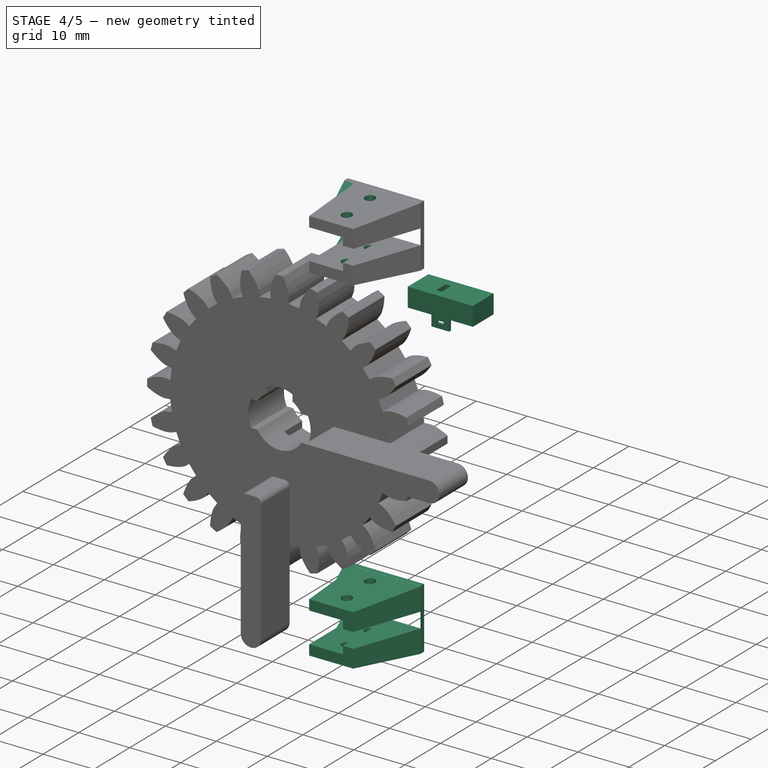
[diagram: stage 4 of 5 — iso view after this stage's code; geometry added in this stage tinted green]
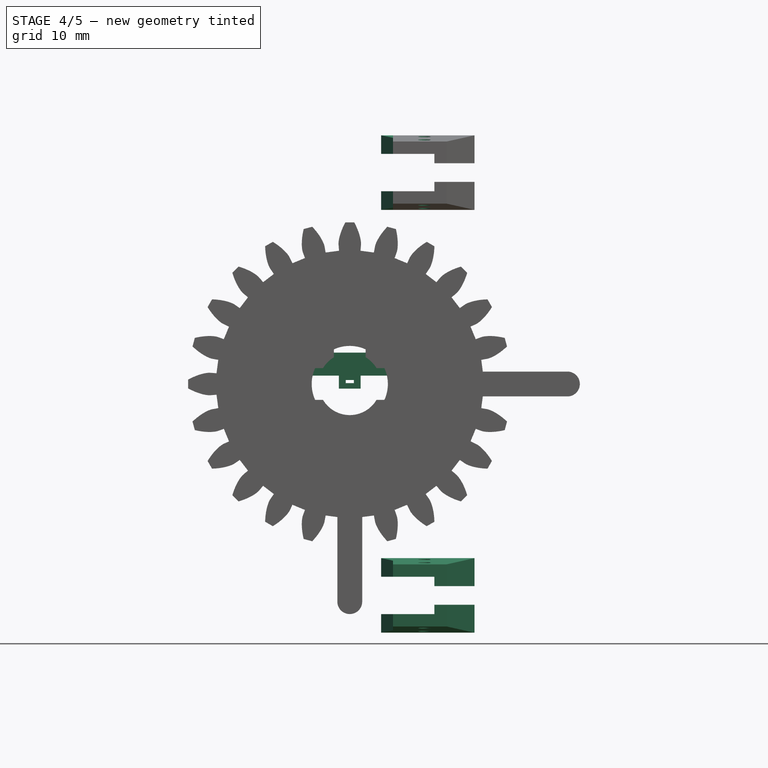
[diagram: stage 4 of 5 — front view after this stage's code; geometry added in this stage tinted green]
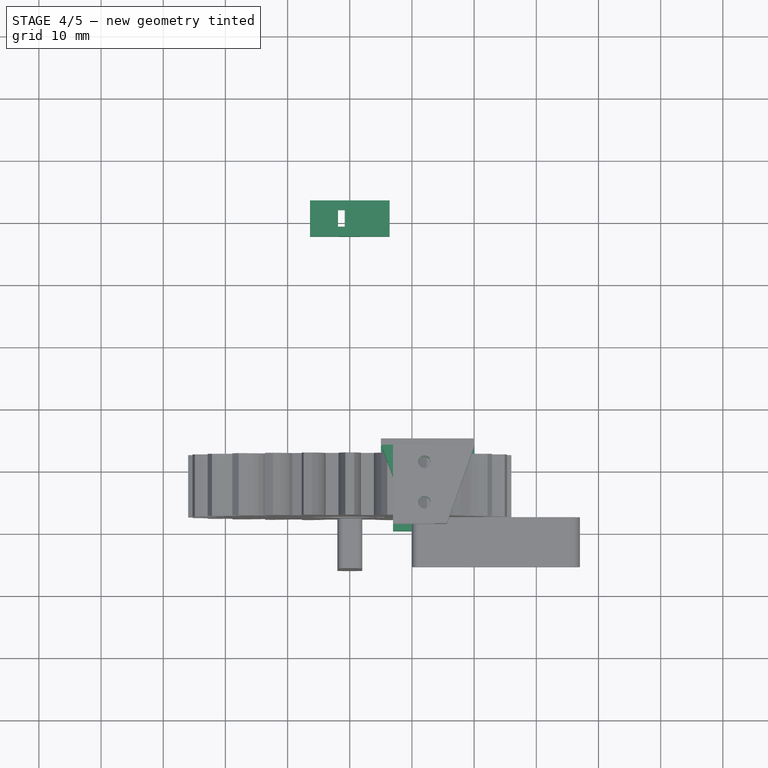
[diagram: stage 4 of 5 — top view after this stage's code; geometry added in this stage tinted green]
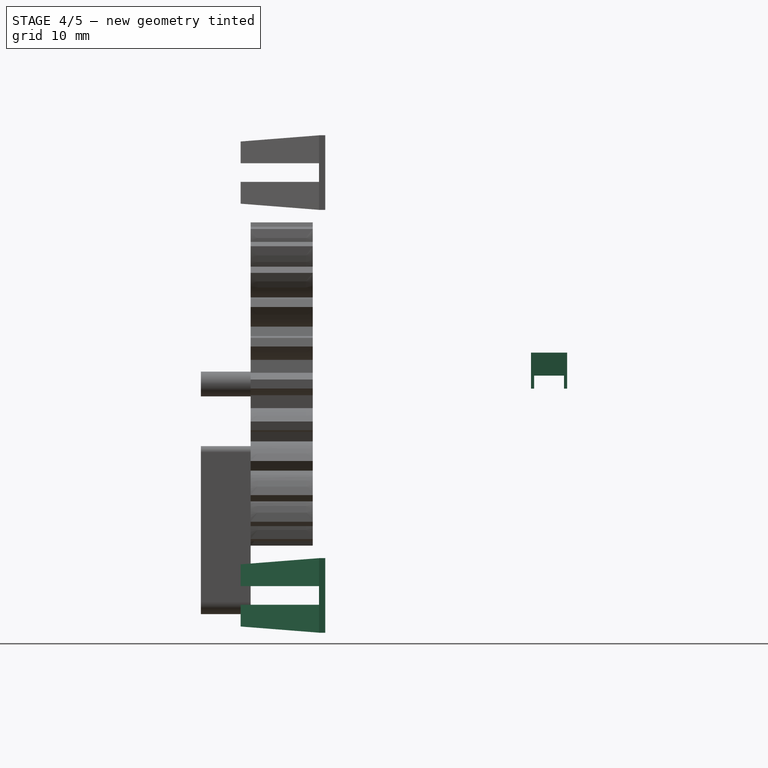
[diagram: stage 4 of 5 — right view after this stage's code; geometry added in this stage tinted green]
FEATURE [PartDesign::Body] Body018  label="Top"
  AllowCompound = false
  Group = -> [Sketch028,Pad004,ShapeBinder003,Sketch035,Pocket013,Sketch036,Pocket014,Sketch037,Pad028,Sketch038,Pocket015,Sketch039,Pocket016]
  Origin = -> Origin030
  Tip = -> Pocket016
FEATURE [Sketcher::SketchObject] Sketch040
  ArcFitTolerance = 0
  AttachmentSupport = -> [XZ_Plane023]
  FullyConstrained = true
  MakeInternals = false
  MapMode = 5
  Placement = pos=(0,0,0) rot=(1,0,0;1.5708rad)
  sketch-geometry (24):
    g0: LineSegment StartX=-6.4 StartY=-1.15 StartZ=0 EndX=-4.3 EndY=-1.15 EndZ=0
    g1: LineSegment StartX=-4.3 StartY=-1.15 StartZ=0 EndX=-3.95 EndY=-1.5 EndZ=0
    g2: LineSegment StartX=-3.95 StartY=-1.5 StartZ=0 EndX=-1.95 EndY=-1.5 EndZ=0
    g3: LineSegment StartX=-1.95 StartY=-1.5 StartZ=0 EndX=-1.6 EndY=-1.15 EndZ=0
    g4: LineSegment StartX=-1.6 StartY=-1.15 StartZ=0 EndX=1.6 EndY=-1.15 EndZ=0
    g5: LineSegment StartX=1.6 StartY=-1.15 StartZ=0 EndX=1.95 EndY=-1.5 EndZ=0
    g6: LineSegment StartX=1.95 StartY=-1.5 StartZ=0 EndX=3.95 EndY=-1.5 EndZ=0
    g7: LineSegment StartX=3.95 StartY=-1.5 StartZ=0 EndX=4.3 EndY=-1.15 EndZ=0
    g8: LineSegment StartX=4.3 StartY=-1.15 StartZ=0 EndX=6.4 EndY=-1.15 EndZ=0
    g9: LineSegment StartX=6.4 StartY=-1.15 StartZ=0 EndX=6.4 EndY=1.35 EndZ=0
    g10: LineSegment StartX=6.4 StartY=1.35 StartZ=0 EndX=5.8 EndY=1.35 EndZ=0
    g11: LineSegment StartX=5.8 StartY=1.35 StartZ=0 EndX=5.8 EndY=2.2 EndZ=0
    g12: LineSegment StartX=5.8 StartY=2.2 StartZ=0 EndX=4.65 EndY=2.2 EndZ=0
    g13: LineSegment StartX=4.65 StartY=2.2 StartZ=0 EndX=4.65 EndY=1.7 EndZ=0
    g14: LineSegment StartX=4.65 StartY=1.7 StartZ=0 EndX=1.6 EndY=1.7 EndZ=0
    g15: LineSegment StartX=1.6 StartY=1.7 StartZ=0 EndX=1.25 EndY=1.35 EndZ=0
    g16: LineSegment StartX=1.25 StartY=1.35 StartZ=0 EndX=-1.25 EndY=1.35 EndZ=0
    g17: LineSegment StartX=-1.25 StartY=1.35 StartZ=0 EndX=-1.6 EndY=1.7 EndZ=0
    g18: LineSegment StartX=-1.6 StartY=1.7 StartZ=0 EndX=-5.8 EndY=1.7 EndZ=0
    g19: LineSegment StartX=-5.8 StartY=1.7 StartZ=0 EndX=-5.8 EndY=1.35 EndZ=0
    g20: LineSegment StartX=-5.8 StartY=1.35 StartZ=0 EndX=-6.4 EndY=1.35 EndZ=0
    g21: LineSegment StartX=-6.4 StartY=1.35 StartZ=0 EndX=-6.4 EndY=-1.15 EndZ=0
    g22: Circle CenterX=-3.25 CenterY=0 CenterZ=0 NormalX=0 NormalY=0 NormalZ=1 AngleXU=0 Radius=1
    g23: Circle CenterX=3.25 CenterY=0 CenterZ=0 NormalX=0 NormalY=0 NormalZ=1 AngleXU=0 Radius=1
  constraints (73):
    c: Horizontal(g0)
    c: Coincident(g0,g1)
    c: Coincident(g1,g2)
    c: Horizontal(g2)
    c: Coincident(g2,g3)
    c: Coincident(g3,g4)
    c: Horizontal(g4)
    c: Coincident(g4,g5)
    c: Coincident(g5,g6)
    c: Horizontal(g6)
    c: Coincident(g6,g7)
    c: Coincident(g7,g8)
    c: Horizontal(g8)
    c: Coincident(g8,g9)
    c: Coincident(g9,g10)
    c: Horizontal(g10)
    c: Coincident(g10,g11)
    c: Vertical(g11)
    c: Coincident(g11,g12)
    c: Coincident(g12,g13)
    c: Vertical(g13)
    c: Coincident(g13,g14)
    c: Horizontal(g14)
    c: Coincident(g14,g15)
    c: Coincident(g15,g16)
    c: Coincident(g16,g17)
    c: Coincident(g17,g18)
    c: Coincident(g18,g19)
    c: Vertical(g19)
    c: Coincident(g19,g20)
    c: Horizontal(g20)
    c: Coincident(g20,g21)
    c: Coincident(g21,g0)
    c: Vertical(g21)
    c: Vertical(g9)
    c: Horizontal(g18)
    c: Horizontal(g14,g17)
    c: Horizontal(g2,g5)
    c: Diameter(g22) = 2
    c: Horizontal(g16)
    c: DistanceX(g20,g9) = 12.8
    c: Horizontal(g12)
    c: Equal(g23,g22)
    c: Horizontal(g0,g3)
    c: Horizontal(g3,g7)
    c: Equal(g6,g2)
    c: DistanceY(g6,g7) = 0.35
    c: DistanceY(g9,g9) = 2.5
    c: DistanceY(g11,g11) = 0.85
    c: DistanceX(g22,g23) = 6.5
    c: DistanceX(g-1,g23) = 3.25
    c: DistanceX(g20,g20) = 0.6
    c: DistanceX(g12,g12) = 1.15
    c: Angle(g2,g1) = 2.35619
    c: Perpendicular(g3,g1)
    c: Parallel(g1,g5)
    c: Perpendicular(g7,g5)
    c: DistanceY(g13,g13) = 0.5
    c: DistanceY(g15,g14) = 0.35
    c: Parallel(g1,g17)
    c: Perpendicular(g17,g15)
    c: Horizontal(g22,g23)
    c: DistanceX(g2,g2) = 2
    c: DistanceX(g0,g-1) = 6.4
    c: PointOnObject(g22,g-1)
    c: DistanceY(g6,g23) = 1.5
    c: Equal(g0,g8)
    c: DistanceX(g4,g4) = 3.2
    c: DistanceX(g10,g10) = 0.6
    c: Equal(g9,g21)
    c: DistanceX(g18,g18) = 4.2
    c: DistanceX(g16,g16) = 2.5
    c: DistanceY(g-1,g11) = 2.2
FEATURE [PartDesign::Pad] Pad029
  Direction = (0,-1,2e-16)
  Length = 5.8
  Length2 = 100
  Midplane = true
  Placement = pos=(0,0,0) rot=(1,0,0;1.5708rad)
  Profile = -> Sketch040
  ReferenceAxis = -> Sketch040 [N_Axis]
  Suppressed = false
  Type = 0
FEATURE [PartDesign::Body] Body024  label="Pin_C001"
  AllowCompound = false
  Group = -> [Sketch043,Pad032,ShapeBinder006,ShapeBinder007]
  Origin = -> Origin037
  Tip = -> Pad032
FEATURE [Sketcher::SketchObject] Sketch044
  ArcFitTolerance = 0
  AttachmentSupport = -> [Pad029]
  ExternalGeometry = -> [Pad029]
  FullyConstrained = true
  MakeInternals = false
  MapMode = 5
  Placement = pos=(0,-2.9,0) rot=(1,0,0;1.5708rad)
  sketch-geometry (14):
    g0: LineSegment StartX=1.75 StartY=1.35 StartZ=0 EndX=1.75 EndY=-0.75 EndZ=0
    g1: LineSegment StartX=1.75 StartY=-0.75 StartZ=0 EndX=-1.75 EndY=-0.75 EndZ=0
    g2: LineSegment StartX=-1.75 StartY=-0.75 StartZ=0 EndX=-1.75 EndY=1.35 EndZ=0
    g3: LineSegment StartX=-0.65 StartY=0.65 StartZ=0 EndX=0.65 EndY=0.65 EndZ=0
    g4: LineSegment StartX=0.65 StartY=0.65 StartZ=0 EndX=0.65 EndY=0.15 EndZ=0
    g5: LineSegment StartX=0.65 StartY=0.15 StartZ=0 EndX=-0.65 EndY=0.15 EndZ=0
    g6: LineSegment StartX=-0.65 StartY=0.15 StartZ=0 EndX=-0.65 EndY=0.65 EndZ=0
    g7: Circle CenterX=-5.3 CenterY=-2e-16 CenterZ=0 NormalX=0 NormalY=0 NormalZ=1 AngleXU=0 Radius=0.7
    g8: Circle CenterX=5.1 CenterY=-2e-16 CenterZ=0 NormalX=0 NormalY=0 NormalZ=1 AngleXU=0 Radius=0.5
    g9: LineSegment StartX=1.75 StartY=1.35 StartZ=0 EndX=6.4 EndY=1.35 EndZ=0
    g10: LineSegment StartX=6.4 StartY=1.35 StartZ=0 EndX=6.4 EndY=2.2 EndZ=0
    g11: LineSegment StartX=6.4 StartY=2.2 StartZ=0 EndX=-6.4 EndY=2.2 EndZ=0
    g12: LineSegment StartX=-6.4 StartY=2.2 StartZ=0 EndX=-6.4 EndY=1.35 EndZ=0
    g13: LineSegment StartX=-6.4 StartY=1.35 StartZ=0 EndX=-1.75 EndY=1.35 EndZ=0
  constraints (40):
    c: Coincident(g0,g1)
    c: Coincident(g1,g2)
    c: Horizontal(g1)
    c: Vertical(g0)
    c: Vertical(g2)
    c: Coincident(g3,g4)
    c: Coincident(g4,g5)
    c: Coincident(g5,g6)
    c: Coincident(g6,g3)
    c: Horizontal(g3)
    c: Horizontal(g5)
    c: Vertical(g4)
    c: Vertical(g6)
    c: DistanceX(g3,g3) = 1.3
    c: DistanceY(g4,g4) = 0.5
    c: DistanceX(g1,g1) = 3.5
    c: DistanceY(g-5,g1) = 0.4
    c: Coincident(g9,g0)
    c: Horizontal(g9)
    c: Coincident(g9,g10)
    c: Vertical(g10)
    c: Coincident(g10,g11)
    c: Horizontal(g11)
    c: Coincident(g11,g12)
    c: Vertical(g12)
    c: Coincident(g12,g13)
    c: Coincident(g13,g2)
    c: Horizontal(g13)
    c: DistanceY(g1,g5) = 0.9
    c: DistanceX(g5,g-1) = 0.65
    c: DistanceX(g-1,g0) = 1.75
    c: Horizontal(g7,g-3)
    c: Horizontal(g8,g-4)
    c: Diameter(g8) = 1
    c: Diameter(g7) = 1.4
    c: DistanceX(g8,g-8) = 1.3
    c: DistanceX(g-7,g7) = 1.1
    c: Horizontal(g10,g-9)
    c: Coincident(g12,g-7)
    c: Coincident(g9,g-8)
FEATURE [PartDesign::Pocket] Pocket017
  BaseFeature = -> Pad029
  Direction = (0,1,-2e-16)
  Length = 0.6
  Length2 = 100
  Placement = pos=(0,0,0) rot=(1,0,0;1.5708rad)
  Profile = -> Sketch044
  ReferenceAxis = -> Sketch044 [N_Axis]
  Suppressed = false
  Type = 0
FEATURE [Sketcher::SketchObject] Sketch045
  ArcFitTolerance = 0
  AttachmentSupport = -> [Pocket017]
  ExternalGeometry = -> [Pocket017]
  FullyConstrained = true
  MakeInternals = false
  MapMode = 5
  Placement = pos=(0,2.9,0) rot=(-1,0,0;1.5708rad)
  sketch-geometry (14):
    g0: LineSegment StartX=-0.65 StartY=-0.15 StartZ=0 EndX=0.65 EndY=-0.15 EndZ=0
    g1: LineSegment StartX=0.65 StartY=-0.15 StartZ=0 EndX=0.65 EndY=-0.65 EndZ=0
    g2: LineSegment StartX=0.65 StartY=-0.65 StartZ=0 EndX=-0.65 EndY=-0.65 EndZ=0
    g3: LineSegment StartX=-0.65 StartY=-0.65 StartZ=0 EndX=-0.65 EndY=-0.15 EndZ=0
    g4: Circle CenterX=5.3 CenterY=0 CenterZ=0 NormalX=0 NormalY=0 NormalZ=1 AngleXU=0 Radius=0.7
    g5: Circle CenterX=-5.3 CenterY=0 CenterZ=0 NormalX=0 NormalY=0 NormalZ=1 AngleXU=0 Radius=0.7
    g6: LineSegment StartX=1.75 StartY=0.75 StartZ=0 EndX=-1.75 EndY=0.75 EndZ=0
    g7: LineSegment StartX=-1.75 StartY=0.75 StartZ=0 EndX=-1.75 EndY=-1.35 EndZ=0
    g8: LineSegment StartX=-1.75 StartY=-1.35 StartZ=0 EndX=-6.4 EndY=-1.35 EndZ=0
    g9: LineSegment StartX=-6.4 StartY=-1.35 StartZ=0 EndX=-6.4 EndY=-2.2 EndZ=0
    g10: LineSegment StartX=-6.4 StartY=-2.2 StartZ=0 EndX=6.4 EndY=-2.2 EndZ=0
    g11: LineSegment StartX=6.4 StartY=-2.2 StartZ=0 EndX=6.4 EndY=-1.35 EndZ=0
    g12: LineSegment StartX=6.4 StartY=-1.35 StartZ=0 EndX=1.75 EndY=-1.35 EndZ=0
    g13: LineSegment StartX=1.75 StartY=-1.35 StartZ=0 EndX=1.75 EndY=0.75 EndZ=0
  constraints (40):
    c: Coincident(g0,g1)
    c: Coincident(g1,g2)
    c: Coincident(g2,g3)
    c: Coincident(g3,g0)
    c: Horizontal(g0)
    c: Horizontal(g2)
    c: Vertical(g1)
    c: Vertical(g3)
    c: PointOnObject(g4,g-1)
    c: PointOnObject(g5,g-1)
    c: Equal(g5,g4)
    c: Diameter(g4) = 1.4
    c: DistanceX(g4,g-3) = 1.1
    c: DistanceX(g-4,g5) = 1.1
    c: Horizontal(g6)
    c: Coincident(g6,g7)
    c: Vertical(g7)
    c: Coincident(g7,g8)
    c: Horizontal(g8)
    c: Coincident(g8,g9)
    c: Vertical(g9)
    c: Coincident(g9,g10)
    c: Horizontal(g10)
    c: Coincident(g10,g11)
    c: Vertical(g11)
    c: Coincident(g11,g12)
    c: Horizontal(g12)
    c: Coincident(g12,g13)
    c: Coincident(g13,g6)
    c: DistanceX(g0,g0) = 1.3
    c: DistanceX(g-1,g0) = 0.65
    c: DistanceY(g1,g1) = 0.5
    c: DistanceY(g0,g6) = 0.9
    c: DistanceY(g6,g-5) = 0.4
    c: Vertical(g13)
    c: DistanceX(g6,g6) = 3.5
    c: DistanceX(g6,g-1) = 1.75
    c: Coincident(g11,g-3)
    c: Coincident(g-6,g8)
    c: Horizontal(g10,g-7)
FEATURE [PartDesign::Pocket] Pocket018
  BaseFeature = -> Pocket017
  Direction = (0,-1,-2e-16)
  Length = 0.6
  Length2 = 100
  Placement = pos=(0,0,0) rot=(1,0,0;1.5708rad)
  Profile = -> Sketch045
  ReferenceAxis = -> Sketch045 [N_Axis]
  Suppressed = false
  Type = 0
FEATURE [PartDesign::Body] Body021  label="Bottom001"
  AllowCompound = false
  Group = -> [Sketch040,Pad029,Sketch044,Pocket017,Sketch045,Pocket018]
  Origin = -> Origin034
  Tip = -> Pocket018
FEATURE [PartDesign::ShapeBinder] ShapeBinder008
  Support = -> [Pocket018]
  TraceSupport = false
FEATURE [Sketcher::SketchObject] Sketch046
  ArcFitTolerance = 0
  AttachmentSupport = -> [XZ_Plane027]
  ExternalGeometry = -> [ShapeBinder008]
  FullyConstrained = true
  MakeInternals = false
  MapMode = 5
  Placement = pos=(0,0,0) rot=(1,0,0;1.5708rad)
  sketch-geometry (12):
    g0: LineSegment StartX=0.65 StartY=0.15 StartZ=0 EndX=-0.65 EndY=0.15 EndZ=0
    g1: LineSegment StartX=-0.65 StartY=0.15 StartZ=0 EndX=-0.65 EndY=0.65 EndZ=0
    g2: LineSegment StartX=-0.65 StartY=0.65 StartZ=0 EndX=0.65 EndY=0.65 EndZ=0
    g3: LineSegment StartX=0.65 StartY=0.65 StartZ=0 EndX=0.65 EndY=0.15 EndZ=0
    g4: LineSegment StartX=6.4 StartY=1.35 StartZ=0 EndX=6.4 EndY=5.05 EndZ=0
    g5: LineSegment StartX=6.4 StartY=5.05 StartZ=0 EndX=-6.4 EndY=5.05 EndZ=0
    g6: LineSegment StartX=-6.4 StartY=5.05 StartZ=0 EndX=-6.4 EndY=1.35 EndZ=0
    g7: LineSegment StartX=-6.4 StartY=1.35 StartZ=0 EndX=-1.75 EndY=1.35 EndZ=0
    g8: LineSegment StartX=-1.75 StartY=1.35 StartZ=0 EndX=-1.75 EndY=-0.75 EndZ=0
    g9: LineSegment StartX=-1.75 StartY=-0.75 StartZ=0 EndX=1.75 EndY=-0.75 EndZ=0
    g10: LineSegment StartX=1.75 StartY=-0.75 StartZ=0 EndX=1.75 EndY=1.35 EndZ=0
    g11: LineSegment StartX=1.75 StartY=1.35 StartZ=0 EndX=6.4 EndY=1.35 EndZ=0
  constraints (31):
    c: Coincident(g0,g1)
    c: Coincident(g1,g2)
    c: Coincident(g2,g3)
    c: Coincident(g3,g0)
    c: Horizontal(g0)
    c: Horizontal(g2)
    c: Vertical(g1)
    c: Vertical(g3)
    c: Coincident(g0,g-5)
    c: Coincident(g1,g-4)
    c: Vertical(g4)
    c: Coincident(g4,g5)
    c: Horizontal(g5)
    c: Coincident(g5,g6)
    c: Vertical(g6)
    c: DistanceY(g4,g4) = 3.7
    c: DistanceY(g-1,g5) = 5.05
    c: Coincident(g4,g-8)
    c: Coincident(g6,g-7)
    c: Coincident(g6,g7)
    c: Horizontal(g7)
    c: Coincident(g7,g8)
    c: Coincident(g8,g-6)
    c: Coincident(g8,g9)
    c: Coincident(g9,g-6)
    c: Coincident(g9,g10)
    c: Vertical(g10)
    c: Coincident(g10,g11)
    c: Coincident(g11,g4)
    c: Horizontal(g11)
    c: Vertical(g8)
FEATURE [PartDesign::Pad] Pad033
  Direction = (0,-1,2e-16)
  Length = 5.8
  Length2 = 100
  Midplane = true
  Placement = pos=(0,0,0) rot=(1,0,0;1.5708rad)
  Profile = -> Sketch046
  ReferenceAxis = -> Sketch046 [N_Axis]
  Suppressed = false
  Type = 0
FEATURE [PartDesign::Body] Body027  label="Lever001"
  AllowCompound = false
  Group = -> [Sketch049,Pad035,Sketch050,Pocket020,Sketch051,Pad036,Sketch052,Pad037]
  Origin = -> Origin040
  Tip = -> Pad037
FEATURE [Sketcher::SketchObject] Sketch053
  ArcFitTolerance = 0
  AttachmentSupport = -> [Pad033]
  ExternalGeometry = -> [Pad033]
  FullyConstrained = true
  MakeInternals = false
  MapMode = 5
  Placement = pos=(0,-3e-16,-0.75) rot=(1,0,0;3.14159rad)
  sketch-geometry (9):
    g0: LineSegment StartX=-5.9 StartY=2.4 StartZ=0 EndX=-5.9 EndY=-2.4 EndZ=0
    g1: LineSegment StartX=-5.9 StartY=-2.4 StartZ=0 EndX=5.9 EndY=-2.4 EndZ=0
    g2: LineSegment StartX=5.9 StartY=-2.4 StartZ=0 EndX=5.9 EndY=2.4 EndZ=0
    g3: LineSegment StartX=5.9 StartY=2.4 StartZ=0 EndX=-5.9 EndY=2.4 EndZ=0
    g4: GeomPoint [constr] X=0 Y=0 Z=0
    g5: LineSegment [constr] StartX=5.9 StartY=-2.4 StartZ=0 EndX=6.4 EndY=-2.4 EndZ=0
    g6: LineSegment [constr] StartX=6.4 StartY=-2.4 StartZ=0 EndX=6.4 EndY=-2.9 EndZ=0
    g7: LineSegment [constr] StartX=6.4 StartY=-2.9 StartZ=0 EndX=5.9 EndY=-2.9 EndZ=0
    g8: LineSegment [constr] StartX=5.9 StartY=-2.9 StartZ=0 EndX=5.9 EndY=-2.4 EndZ=0
  constraints (22):
    c: Coincident(g0,g1)
    c: Coincident(g1,g2)
    c: Coincident(g2,g3)
    c: Coincident(g3,g0)
    c: Horizontal(g1)
    c: Horizontal(g3)
    c: Vertical(g0)
    c: Vertical(g2)
    c: Symmetric(g1,g0,g4)
    c: Coincident(g4,g-1)
    c: Coincident(g5,g6)
    c: Coincident(g6,g7)
    c: Coincident(g7,g8)
    c: Coincident(g8,g5)
    c: Horizontal(g5)
    c: Horizontal(g7)
    c: Vertical(g6)
    c: Vertical(g8)
    c: Coincident(g5,g1)
    c: Coincident(g6,g-3)
    c: Equal(g5,g6)
    c: DistanceX(g7,g7) = 0.5
FEATURE [PartDesign::Pocket] Pocket021
  BaseFeature = -> Pad033
  Direction = (0,0,1)
  Length = 5.15
  Length2 = 5
  Placement = pos=(0,0,0) rot=(1,0,0;1.5708rad)
  Profile = -> Sketch053
  ReferenceAxis = -> Sketch053 [N_Axis]
  Suppressed = false
  Type = 0
FEATURE [Sketcher::SketchObject] Sketch054
  ArcFitTolerance = 0
  AttachmentSupport = -> [Pocket021]
  FullyConstrained = true
  MakeInternals = false
  MapMode = 5
  Placement = pos=(0,2.2e-15,5.05) rot=(0,0,1;3.14159rad)
  sketch-geometry (5):
    g0: LineSegment StartX=0.8 StartY=-1.325 StartZ=0 EndX=0.8 EndY=1.325 EndZ=0
    g1: LineSegment StartX=0.8 StartY=1.325 StartZ=0 EndX=1.9 EndY=1.325 EndZ=0
    g2: LineSegment StartX=1.9 StartY=1.325 StartZ=0 EndX=1.9 EndY=-1.325 EndZ=0
    g3: LineSegment StartX=1.9 StartY=-1.325 StartZ=0 EndX=0.8 EndY=-1.325 EndZ=0
    g4: GeomPoint [constr] X=1.35 Y=0 Z=0
  constraints (13):
    c: Coincident(g0,g1)
    c: Coincident(g1,g2)
    c: Coincident(g2,g3)
    c: Coincident(g3,g0)
    c: Horizontal(g1)
    c: Horizontal(g3)
    c: Vertical(g0)
    c: Vertical(g2)
    c: Symmetric(g1,g0,g4)
    c: PointOnObject(g4,g-1)
    c: DistanceX(g1,g1) = 1.1
    c: DistanceY(g2,g2) = 2.65
    c: DistanceX(g0) = 0.8
FEATURE [PartDesign::Pocket] Pocket022
  BaseFeature = -> Pocket021
  Direction = (0,0,-1)
  Length = 5
  Length2 = 5
  Placement = pos=(0,0,0) rot=(1,0,0;1.5708rad)
  Profile = -> Sketch054
  ReferenceAxis = -> Sketch054 [N_Axis]
  Suppressed = false
  Type = 2
FEATURE [Sketcher::SketchObject] Sketch055
  ArcFitTolerance = 0
  AttachmentSupport = -> [Pocket022]
  ExternalGeometry = -> [Pocket022]
  FullyConstrained = true
  MakeInternals = false
  MapMode = 5
  Placement = pos=(0,0,4.4) rot=(1,0,0;3.14159rad)
  sketch-geometry (8):
    g0: LineSegment StartX=-2.6 StartY=-2.4 StartZ=0 EndX=-1.9 EndY=-2.4 EndZ=0
    g1: LineSegment StartX=-1.9 StartY=-2.4 StartZ=0 EndX=-1.9 EndY=2.4 EndZ=0
    g2: LineSegment StartX=-1.9 StartY=2.4 StartZ=0 EndX=-2.6 EndY=2.4 EndZ=0
    g3: LineSegment StartX=-2.6 StartY=2.4 StartZ=0 EndX=-2.6 EndY=-2.4 EndZ=0
    g4: LineSegment StartX=-0.8 StartY=2.4 StartZ=0 EndX=-0.1 EndY=2.4 EndZ=0
    g5: LineSegment StartX=-0.1 StartY=2.4 StartZ=0 EndX=-0.1 EndY=-2.4 EndZ=0
    g6: LineSegment StartX=-0.1 StartY=-2.4 StartZ=0 EndX=-0.8 EndY=-2.4 EndZ=0
    g7: LineSegment StartX=-0.8 StartY=-2.4 StartZ=0 EndX=-0.8 EndY=2.4 EndZ=0
  constraints (24):
    c: Coincident(g0,g1)
    c: Coincident(g1,g2)
    c: Coincident(g2,g3)
    c: Coincident(g3,g0)
    c: Horizontal(g0)
    c: Horizontal(g2)
    c: Vertical(g1)
    c: Vertical(g3)
    c: PointOnObject(g0,g-3)
    c: PointOnObject(g1,g-6)
    c: Coincident(g4,g5)
    c: Coincident(g5,g6)
    c: Coincident(g6,g7)
    c: Coincident(g7,g4)
    c: Horizontal(g4)
    c: Horizontal(g6)
    c: Vertical(g5)
    c: Vertical(g7)
    c: PointOnObject(g4,g-6)
    c: PointOnObject(g5,g-3)
    c: Vertical(g-5,g4)
    c: Equal(g4,g2)
    c: Vertical(g1,g-4)
    c: DistanceX(g2,g2) = 0.7
FEATURE [PartDesign::Pad] Pad038
  BaseFeature = -> Pocket022
  Direction = (0,0,-1)
  Length = 0.8
  Length2 = 10
  Placement = pos=(0,0,0) rot=(1,0,0;1.5708rad)
  Profile = -> Sketch055
  ReferenceAxis = -> Sketch055 [N_Axis]
  Suppressed = false
  Type = 0
FEATURE [Sketcher::SketchObject] Sketch060
  ArcFitTolerance = 1e-06
  AttachmentSupport = -> [XY_Plane030]
  ExternalGeometry = -> [Binder011]
  FullyConstrained = true
  MakeInternals = false
  MapMode = 5
  sketch-geometry (2):
    g0: Circle CenterX=12 CenterY=-39.75 CenterZ=0 NormalX=0 NormalY=0 NormalZ=1 AngleXU=0 Radius=1
    g1: Circle CenterX=12 CenterY=-46.25 CenterZ=0 NormalX=0 NormalY=0 NormalZ=1 AngleXU=0 Radius=1
  constraints (4):
    c: Coincident(g0,g-3)
    c: Equal(g0,g-3)
    c: Coincident(g1,g-4)
    c: Equal(g1,g-4)
FEATURE [PartDesign::Pocket] Pocket025
  BaseFeature = -> Draft002
  Direction = (0,0,-1)
  Length = 5
  Length2 = 5
  Placement = pos=(0,-36,0) rot=(1,0,0;1.5708rad)
  Profile = -> Sketch060
  ReferenceAxis = -> Sketch060 [N_Axis]
  Refine = true
  Reversed = true
  Suppressed = false
  Type = 1
FEATURE [PartDesign::Chamfer] Chamfer001
  Angle = 45
  Base = -> Pocket025 [Edge24,Edge18]
  BaseFeature = -> Pocket025
  ChamferType = 1
  FlipDirection = false
  Placement = pos=(0,-36,0) rot=(1,0,0;1.5708rad)
  Refine = true
  Size = 1.9
  Size2 = 5
  SupportTransform = false
  Suppressed = false
  UseAllEdges = false
FEATURE [PartDesign::Mirrored] Mirrored002
  BaseFeature = -> Chamfer001
  MirrorPlane = -> XY_Plane030
  Placement = pos=(0,-36,0) rot=(1,0,0;1.5708rad)
  Refine = true
  Suppressed = false
  TransformMode = 1
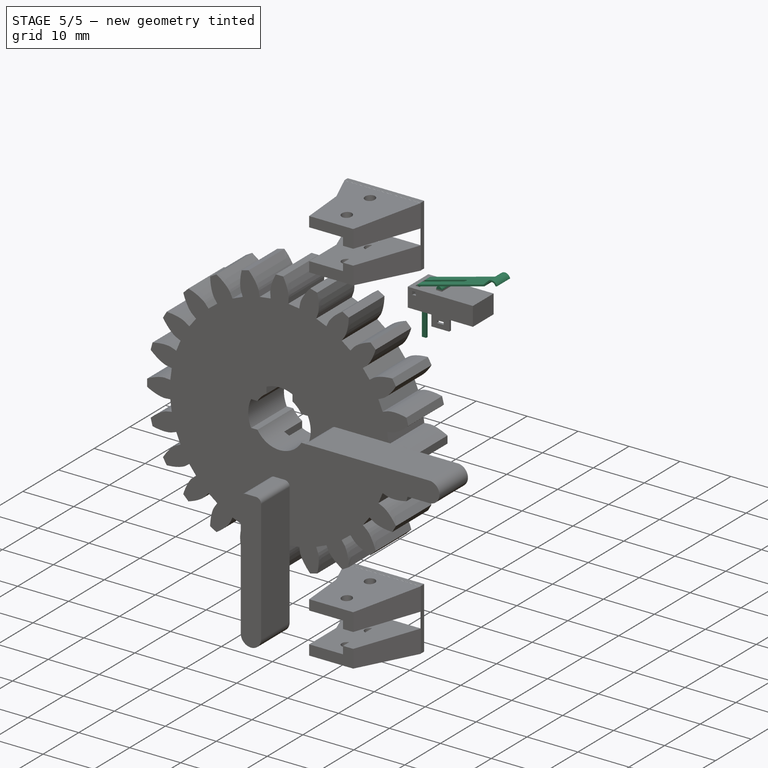
[diagram: stage 5 of 5 — iso view after this stage's code; geometry added in this stage tinted green]
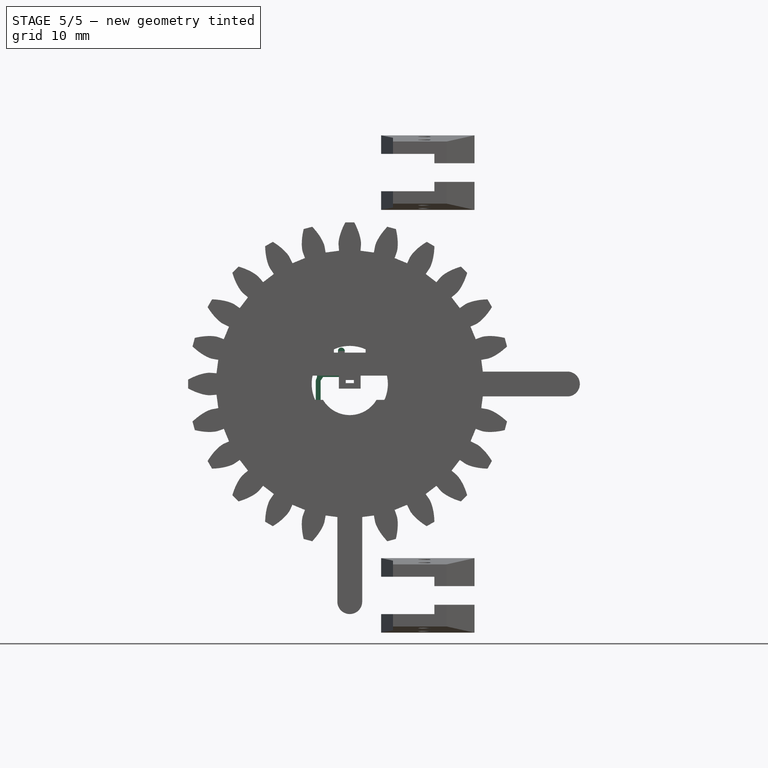
[diagram: stage 5 of 5 — front view after this stage's code; geometry added in this stage tinted green]
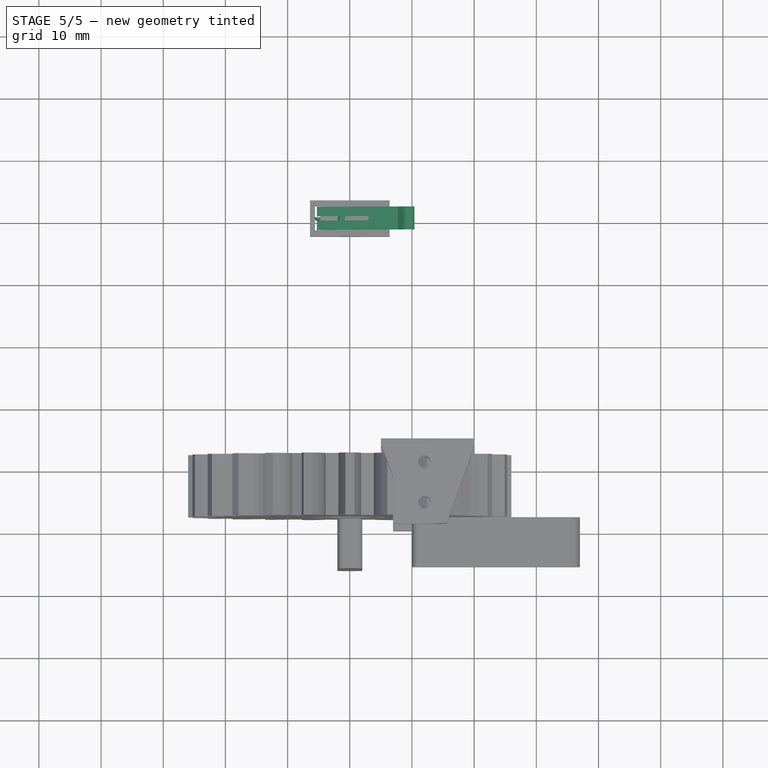
[diagram: stage 5 of 5 — top view after this stage's code; geometry added in this stage tinted green]
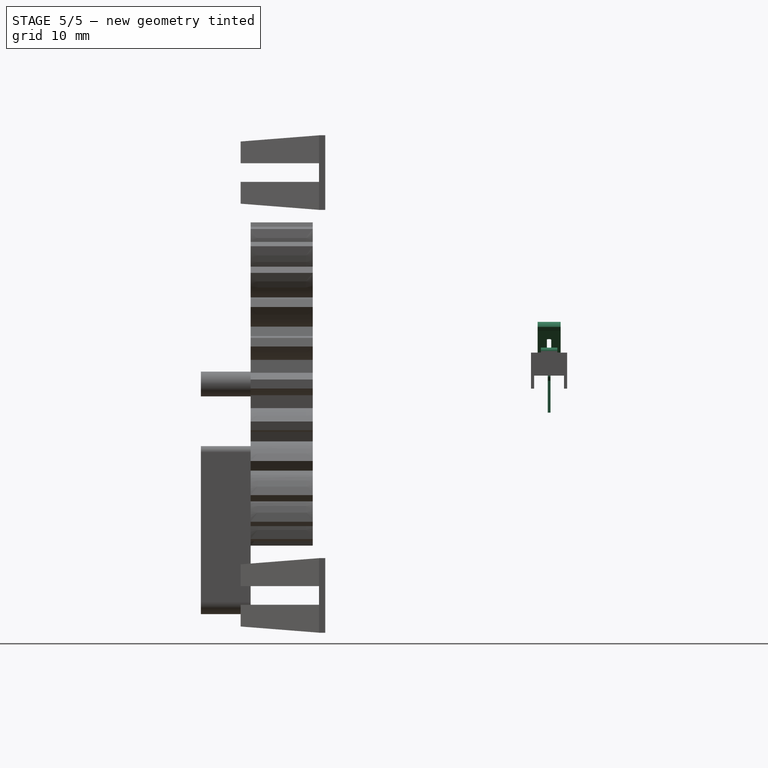
[diagram: stage 5 of 5 — right view after this stage's code; geometry added in this stage tinted green]
FEATURE [Sketcher::SketchObject] Sketch041
  ArcFitTolerance = 0
  AttachmentSupport = -> [XZ_Plane024]
  FullyConstrained = true
  MakeInternals = false
  MapMode = 5
  Placement = pos=(0,0,0) rot=(1,0,0;1.5708rad)
  sketch-geometry (10):
    g0: LineSegment StartX=5.48 StartY=-4.6 StartZ=0 EndX=5.48 EndY=4.6 EndZ=0
    g1: LineSegment StartX=5.48 StartY=4.6 StartZ=0 EndX=2.68 EndY=4.6 EndZ=0
    g2: LineSegment StartX=2.68 StartY=4.6 StartZ=0 EndX=2.68 EndY=3.8 EndZ=0
    g3: LineSegment StartX=2.68 StartY=3.8 StartZ=0 EndX=2.98 EndY=3.8 EndZ=0
    g4: LineSegment StartX=2.98 StartY=3.8 StartZ=0 EndX=2.98 EndY=3.7 EndZ=0
    g5: LineSegment StartX=2.98 StartY=3.7 StartZ=0 EndX=3.48 EndY=3.7 EndZ=0
    g6: LineSegment StartX=3.48 StartY=3.7 StartZ=0 EndX=3.48 EndY=3.8 EndZ=0
    g7: LineSegment StartX=3.48 StartY=3.8 StartZ=0 EndX=4.68 EndY=3.8 EndZ=0
    g8: LineSegment StartX=4.68 StartY=3.8 StartZ=0 EndX=4.68 EndY=-4.6 EndZ=0
    g9: LineSegment StartX=4.68 StartY=-4.6 StartZ=0 EndX=5.48 EndY=-4.6 EndZ=0
  constraints (31):
    c: Vertical(g0)
    c: DistanceY(g0,g0) = 9.2
    c: Coincident(g0,g1)
    c: Horizontal(g1)
    c: Coincident(g1,g2)
    c: Vertical(g2)
    c: Coincident(g2,g3)
    c: Coincident(g3,g4)
    c: Vertical(g4)
    c: Coincident(g4,g5)
    c: Horizontal(g5)
    c: Coincident(g5,g6)
    c: Coincident(g6,g7)
    c: Horizontal(g7)
    c: Coincident(g7,g8)
    c: Vertical(g8)
    c: Coincident(g8,g9)
    c: Coincident(g9,g0)
    c: Horizontal(g9)
    c: DistanceX(g9,g9) = 0.8
    c: Horizontal(g3)
    c: Horizontal(g3,g6)
    c: Vertical(g6)
    c: Equal(g9,g2)
    c: DistanceY(g-1,g0) = 4.6
    c: DistanceX(g1,g1) = 2.8
    c: DistanceX(g3,g3) = 0.3
    c: DistanceX(g7,g7) = 1.2
    c: DistanceY(g6,g6) = 0.1
    c: DistanceX(g-1,g8) = 4.68
    c: DistanceY(g0,g-1) = 4.6
FEATURE [PartDesign::Pad] Pad030
  Direction = (0,-1,2e-16)
  Length = 0.45
  Length2 = 100
  Midplane = true
  Placement = pos=(0,0,0) rot=(1,0,0;1.5708rad)
  Profile = -> Sketch041
  ReferenceAxis = -> Sketch041 [N_Axis]
  Suppressed = false
  Type = 0
FEATURE [PartDesign::Body] Body022  label="Pin_NC001"
  AllowCompound = false
  Group = -> [Sketch041,Pad030]
  Origin = -> Origin035
  Tip = -> Pad030
FEATURE [PartDesign::ShapeBinder] ShapeBinder005
  Placement = pos=(0,-0.225,0) rot=(0,0,1;0rad)
  Support = -> [Pad030]
  TraceSupport = false
FEATURE [Sketcher::SketchObject] Sketch042
  ArcFitTolerance = 0
  AttachmentSupport = -> [XZ_Plane025]
  ExternalGeometry = -> [ShapeBinder005]
  FullyConstrained = true
  MakeInternals = false
  MapMode = 5
  Placement = pos=(0,0,0) rot=(1,0,0;1.5708rad)
  sketch-geometry (12):
    g0: LineSegment StartX=0.4 StartY=-4.6 StartZ=0 EndX=-0.4 EndY=-4.6 EndZ=0
    g1: LineSegment StartX=-0.4 StartY=-4.6 StartZ=0 EndX=-0.4 EndY=0.909572 EndZ=0
    g2: LineSegment StartX=0.4 StartY=0.457892 StartZ=0 EndX=2.84795 EndY=1.20543 EndZ=0
    g3: LineSegment StartX=2.84795 StartY=1.20543 StartZ=0 EndX=3.48 EndY=1.20543 EndZ=0
    g4: LineSegment StartX=3.48 StartY=1.20543 StartZ=0 EndX=3.48 EndY=3.06272 EndZ=0
    g5: LineSegment StartX=3.48 StartY=3.06272 StartZ=0 EndX=2.98 EndY=3.06272 EndZ=0
    g6: LineSegment StartX=2.98 StartY=3.06272 StartZ=0 EndX=2.98 EndY=2.48242 EndZ=0
    g7: LineSegment StartX=2.98 StartY=2.48242 StartZ=0 EndX=2.48712 EndY=2.48242 EndZ=0
    g8: LineSegment StartX=2.48712 StartY=2.48242 StartZ=0 EndX=2.48712 EndY=1.53533 EndZ=0
    g9: LineSegment StartX=2.48712 StartY=1.53533 StartZ=0 EndX=0.437957 EndY=0.909572 EndZ=0
    g10: LineSegment StartX=0.437957 StartY=0.909572 StartZ=0 EndX=-0.4 EndY=0.909572 EndZ=0
    g11: LineSegment StartX=0.4 StartY=-4.6 StartZ=0 EndX=0.4 EndY=0.457892 EndZ=0
  constraints (32):
    c: Coincident(g0,g1)
    c: Horizontal(g0)
    c: Vertical(g1)
    c: Equal(g0,g-5)
    c: DistanceX(g1,g-1) = 0.4
    c: Coincident(g2,g3)
    c: Horizontal(g3)
    c: Coincident(g3,g4)
    c: Vertical(g4)
    c: Coincident(g4,g5)
    c: Coincident(g5,g6)
    c: Vertical(g6)
    c: Coincident(g6,g7)
    c: Coincident(g7,g8)
    c: Vertical(g8)
    c: Coincident(g8,g9)
    c: Coincident(g9,g10)
    c: Coincident(g10,g1)
    c: Horizontal(g7)
    c: Horizontal(g5)
    c: Equal(g5,g-3)
    c: Vertical(g4,g-3)
    c: Parallel(g9,g2)
    c: Horizontal(g10)
    c: Block(g8)
    c: Block(g9)
    c: Block(g2)
    c: Block(g4)
    c: Horizontal(g-5,g0)
    c: Coincident(g11,g0)
    c: Coincident(g11,g2)
    c: Vertical(g11)
FEATURE [PartDesign::Pad] Pad031
  Direction = (0,-1,2e-16)
  Length = 0.45
  Length2 = 100
  Midplane = true
  Placement = pos=(0,0,0) rot=(1,0,0;1.5708rad)
  Profile = -> Sketch042
  ReferenceAxis = -> Sketch042 [N_Axis]
  Suppressed = false
  Type = 0
FEATURE [PartDesign::Body] Body023  label="Pin_NO001"
  AllowCompound = false
  Group = -> [Sketch042,Pad031,ShapeBinder005]
  Origin = -> Origin036
  Tip = -> Pad031
FEATURE [PartDesign::ShapeBinder] ShapeBinder006
  Placement = pos=(0,-0.225,0) rot=(0,0,1;0rad)
  Support = -> [Pad030]
  TraceSupport = false
FEATURE [PartDesign::ShapeBinder] ShapeBinder007
  Placement = pos=(0,-0.225,0) rot=(0,0,1;0rad)
  Support = -> [Pad031]
  TraceSupport = false
FEATURE [Sketcher::SketchObject] Sketch043
  ArcFitTolerance = 0
  AttachmentSupport = -> [XZ_Plane026]
  ExternalGeometry = -> [ShapeBinder006,ShapeBinder007]
  FullyConstrained = true
  MakeInternals = false
  MapMode = 5
  Placement = pos=(0,0,0) rot=(1,0,0;1.5708rad)
  sketch-geometry (17):
    g0: LineSegment StartX=-5.48 StartY=0.573115 StartZ=0 EndX=-5.48 EndY=-4.6 EndZ=0
    g1: LineSegment StartX=-4.68 StartY=0.531664 StartZ=0 EndX=-4.29703 EndY=1.12608 EndZ=0
    g2: LineSegment StartX=-4.29703 StartY=1.12608 StartZ=0 EndX=-1.12486 EndY=1.12608 EndZ=0
    g3: LineSegment StartX=-1.12486 StartY=1.12608 StartZ=0 EndX=-1.12486 EndY=1.90154 EndZ=0
    g4: LineSegment StartX=-1.12486 StartY=1.90154 StartZ=0 EndX=-0.654846 EndY=1.90154 EndZ=0
    g5: LineSegment StartX=-0.654846 StartY=1.90154 StartZ=0 EndX=-1.19401 EndY=3.7 EndZ=0
    g6: LineSegment StartX=-1.19401 StartY=3.7 StartZ=0 EndX=-1.69401 EndY=3.7 EndZ=0
    g7: LineSegment StartX=-1.69401 StartY=3.7 StartZ=0 EndX=-1.69401 EndY=2.23443 EndZ=0
    g8: LineSegment StartX=-1.69401 StartY=2.23443 StartZ=0 EndX=-4.63708 EndY=2.23443 EndZ=0
    g9: LineSegment StartX=-4.63708 StartY=2.23443 StartZ=0 EndX=-4.63708 EndY=3.7 EndZ=0
    g10: LineSegment StartX=-4.63708 StartY=3.7 StartZ=0 EndX=-5.48708 EndY=3.7 EndZ=0
    g11: LineSegment StartX=-5.48708 StartY=3.7 StartZ=0 EndX=-5.74689 EndY=1.90154 EndZ=0
    g12: LineSegment StartX=-5.74689 StartY=1.90154 StartZ=0 EndX=-5.27688 EndY=1.90154 EndZ=0
    g13: LineSegment StartX=-5.27688 StartY=1.90154 StartZ=0 EndX=-5.27688 EndY=1.09492 EndZ=0
    g14: LineSegment StartX=-5.27688 StartY=1.09492 StartZ=0 EndX=-5.48 EndY=0.573115 EndZ=0
    g15: LineSegment StartX=-5.48 StartY=-4.6 StartZ=0 EndX=-4.68 EndY=-4.6 EndZ=0
    g16: LineSegment StartX=-4.68 StartY=-4.6 StartZ=0 EndX=-4.68 EndY=0.531664 EndZ=0
  constraints (49):
    c: Vertical(g0)
    c: Coincident(g1,g2)
    c: Horizontal(g2)
    c: Coincident(g2,g3)
    c: Vertical(g3)
    c: Coincident(g3,g4)
    c: Horizontal(g4)
    c: Coincident(g4,g5)
    c: Coincident(g5,g6)
    c: Horizontal(g6)
    c: Coincident(g6,g7)
    c: Vertical(g7)
    c: Coincident(g7,g8)
    c: Horizontal(g8)
    c: Coincident(g8,g9)
    c: Vertical(g9)
    c: Coincident(g9,g10)
    c: Horizontal(g10)
    c: Coincident(g10,g11)
    c: Coincident(g11,g12)
    c: Horizontal(g12)
    c: Coincident(g12,g13)
    c: Vertical(g13)
    c: Coincident(g13,g14)
    c: Coincident(g14,g0)
    c: Horizontal(g6,g9)
    c: Horizontal(g5,g-9)
    c: Horizontal(g12,g3)
    c: Equal(g4,g12)
    c: DistanceX(g6,g6) = 0.5
    c: DistanceX(g10,g10) = 0.85
    c: Coincident(g0,g15)
    c: Horizontal(g15)
    c: Coincident(g15,g16)
    c: Coincident(g16,g1)
    c: Vertical(g16)
    c: Horizontal(g15,g-6)
    c: DistanceX(g15,g-6) = 4.28
    c: Equal(g-3,g15)
    c: Block(g8)
    c: Block(g12)
    c: Block(g13)
    c: Block(g14)
    c: Block(g0)
    c: Block(g1)
    c: Block(g2)
    c: Block(g4)
    c: Block(g3)
    c: Block(g5)
FEATURE [PartDesign::Pad] Pad032
  Direction = (0,-1,2e-16)
  Length = 0.45
  Length2 = 100
  Midplane = true
  Placement = pos=(0,0,0) rot=(1,0,0;1.5708rad)
  Profile = -> Sketch043
  ReferenceAxis = -> Sketch043 [N_Axis]
  Suppressed = false
  Type = 0
FEATURE [Sketcher::SketchObject] Sketch047
  ArcFitTolerance = 0
  AttachmentSupport = -> [XZ_Plane028]
  FullyConstrained = false
  MakeInternals = false
  MapMode = 5
  Placement = pos=(0,0,0) rot=(1,0,0;1.5708rad)
  sketch-geometry (4):
    g0: LineSegment StartX=-0.8 StartY=5.3 StartZ=0 EndX=-0.8 EndY=2.5 EndZ=0
    g1: LineSegment StartX=-0.8 StartY=2.5 StartZ=0 EndX=-1.9 EndY=2.5 EndZ=0
    g2: LineSegment StartX=-1.9 StartY=2.5 StartZ=0 EndX=-1.9 EndY=5.3 EndZ=0
    g3: ArcOfCircle CenterX=-1.35 CenterY=5.3 CenterZ=0 NormalX=0 NormalY=0 NormalZ=1 AngleXU=0 Radius=0.55 StartAngle=5e-16 EndAngle=3.14159
  constraints (12):
    c: Coincident(g0,g1)
    c: Coincident(g1,g2)
    c: Horizontal(g1)
    c: Vertical(g0)
    c: Vertical(g2)
    c: DistanceX(g2,g0) = 1.1
    c: DistanceY(g0,g0) = 2.8
    c: DistanceX(g0,g-1) = 0.8
    c: Equal(g2,g0)
    c: Coincident(g3,g0)
    c: Coincident(g3,g2)
    c: Horizontal(g3,g0)
FEATURE [PartDesign::Pad] Pad034
  Direction = (0,-1,2e-16)
  Length = 4.1
  Length2 = 100
  Midplane = true
  Placement = pos=(0,0,0) rot=(1,0,0;1.5708rad)
  Profile = -> Sketch047
  ReferenceAxis = -> Sketch047 [N_Axis]
  Suppressed = false
  Type = 0
FEATURE [Sketcher::SketchObject] Sketch048
  ArcFitTolerance = 0
  AttachmentSupport = -> [Pad034]
  ExternalGeometry = -> [Pad034]
  FullyConstrained = true
  MakeInternals = false
  MapMode = 5
  Placement = pos=(-0.8,0,0) rot=(0.707107,0,0.707107;3.14159rad)
  sketch-geometry (8):
    g0: LineSegment StartX=2.5 StartY=2.05 StartZ=0 EndX=6 EndY=2.05 EndZ=0
    g1: LineSegment StartX=6 StartY=2.05 StartZ=0 EndX=6 EndY=1.325 EndZ=0
    g2: LineSegment StartX=6 StartY=1.325 StartZ=0 EndX=2.5 EndY=1.325 EndZ=0
    g3: LineSegment StartX=2.5 StartY=1.325 StartZ=0 EndX=2.5 EndY=2.05 EndZ=0
    g4: LineSegment StartX=2.5 StartY=-2.05 StartZ=0 EndX=2.5 EndY=-1.325 EndZ=0
    g5: LineSegment StartX=2.5 StartY=-1.325 StartZ=0 EndX=6 EndY=-1.325 EndZ=0
    g6: LineSegment StartX=6 StartY=-1.325 StartZ=0 EndX=6 EndY=-2.05 EndZ=0
    g7: LineSegment StartX=6 StartY=-2.05 StartZ=0 EndX=2.5 EndY=-2.05 EndZ=0
  constraints (23):
    c: Coincident(g0,g1)
    c: Coincident(g1,g2)
    c: Coincident(g2,g3)
    c: Coincident(g3,g0)
    c: Horizontal(g0)
    c: Horizontal(g2)
    c: Vertical(g1)
    c: Vertical(g3)
    c: Coincident(g0,g-5)
    c: Coincident(g4,g5)
    c: Coincident(g5,g6)
    c: Horizontal(g5)
    c: Vertical(g4)
    c: Vertical(g6)
    c: Equal(g1,g6)
    c: DistanceY(g-6,g-6) = 4.1
    c: DistanceY(g5,g1) = 2.65
    c: Vertical(g1,g5)
    c: Coincident(g7,g6)
    c: Coincident(g7,g4)
    c: Horizontal(g7)
    c: Coincident(g-5,g4)
    c: DistanceX(g0,g0) = 3.5
FEATURE [PartDesign::Pocket] Pocket019
  BaseFeature = -> Pad034
  Direction = (-1,0,2e-16)
  Length = 1.7
  Length2 = 100
  Placement = pos=(0,0,0) rot=(1,0,0;1.5708rad)
  Profile = -> Sketch048
  ReferenceAxis = -> Sketch048 [N_Axis]
  Suppressed = false
  Type = 0
FEATURE [PartDesign::ShapeBinder] ShapeBinder009
  Placement = pos=(0,0,0) rot=(1,0,0;1.5708rad)
  TraceSupport = false
FEATURE [PartDesign::Body] Body026  label="Button001"
  AllowCompound = false
  Group = -> [Sketch047,Pad034,Sketch048,Pocket019,ShapeBinder009]
  Origin = -> Origin039
  Tip = -> Pocket019
FEATURE [Sketcher::SketchObject] Sketch049
  ArcFitTolerance = 0
  AttachmentSupport = -> [XZ_Plane029]
  FullyConstrained = false
  MakeInternals = false
  MapMode = 5
  Placement = pos=(0,0,0) rot=(1,0,0;1.5708rad)
  sketch-geometry (11):
    g0: LineSegment StartX=-5.3 StartY=5.3 StartZ=0 EndX=-5.3 EndY=3.85 EndZ=0
    g1: LineSegment StartX=-5.3 StartY=3.85 StartZ=0 EndX=-5 EndY=3.85 EndZ=0
    g2: LineSegment StartX=-5 StartY=3.85 StartZ=0 EndX=-5 EndY=5.0698 EndZ=0
    g3: LineSegment StartX=-5 StartY=5.0698 StartZ=0 EndX=7.89529 EndY=8.52508 EndZ=0
    g4: LineSegment StartX=-5.3 StartY=5.3 StartZ=0 EndX=7.74 EndY=8.79406 EndZ=0
    g5: ArcOfCircle CenterX=9.36634 CenterY=8.93548 CenterZ=0 NormalX=0 NormalY=0 NormalZ=1 AngleXU=0 Radius=0.75 StartAngle=0.2409 EndAngle=2.35619
    g6: ArcOfCircle CenterX=9.36634 CenterY=8.93548 CenterZ=0 NormalX=0 NormalY=0 NormalZ=1 AngleXU=0 Radius=1.05 StartAngle=0.246872 EndAngle=2.35619
    g7: LineSegment StartX=8.62388 StartY=9.67794 StartZ=0 EndX=7.74 EndY=8.79406 EndZ=0
    g8: LineSegment StartX=8.83601 StartY=9.46581 StartZ=0 EndX=7.89529 EndY=8.52508 EndZ=0
    g9: LineSegment [constr] StartX=7.89529 StartY=8.52508 StartZ=0 EndX=4.10037 EndY=7.50824 EndZ=0
    g10: LineSegment StartX=10.0947 StartY=9.11441 StartZ=0 EndX=10.3845 EndY=9.19207 EndZ=0
  constraints (32):
    c: Vertical(g0)
    c: Coincident(g0,g1)
    c: Coincident(g1,g2)
    c: Vertical(g2)
    c: Coincident(g2,g3)
    c: Coincident(g0,g4)
    c: Horizontal(g1)
    c: Parallel(g4,g3)
    c: Distance(g3,g4) = 0.3
    c: DistanceX(g1,g1) = 0.3
    c: Coincident(g6,g5)
    c: Coincident(g7,g4)
    c: Coincident(g8,g3)
    c: Parallel(g8,g7)
    c: Diameter(g5) = 1.5
    c: Diameter(g6) = 2.1
    c: Coincident(g9,g3)
    c: Parallel(g9,g3)
    c: PointOnObject(g6,g9)
    c: PointOnObject(g5,g9)
    c: Tangent(g6,g7) = -1.5708
    c: Tangent(g5,g8) = -1.5708
    c: Coincident(g10,g5)
    c: Coincident(g10,g6)
    c: Distance(g4) = 13.5
    c: Angle(g2,g3) = 1.8326
    c: DistanceX(g1,g-1) = 5
    c: DistanceY(g-1,g1) = 3.85
    c: DistanceY(g0,g0) = 1.45
    c: Angle(g7,g4) = 2.61799
    c: Distance(g7) = 1.25
    c: DistanceY(g-1,g6) = 9.19207
FEATURE [PartDesign::Pad] Pad035
  Direction = (0,-1,2e-16)
  Length = 3.7
  Length2 = 100
  Midplane = true
  Placement = pos=(0,0,0) rot=(1,0,0;1.5708rad)
  Profile = -> Sketch049
  ReferenceAxis = -> Sketch049 [N_Axis]
  Suppressed = false
  Type = 0
FEATURE [Sketcher::SketchObject] Sketch050
  ArcFitTolerance = 0
  AttachmentSupport = -> [Pad035]
  ExternalGeometry = -> [Pad035]
  FullyConstrained = true
  MakeInternals = false
  MapMode = 5
  Placement = pos=(0,1.7e-15,3.85) rot=(1,0,0;3.14159rad)
  sketch-geometry (4):
    g0: ArcOfCircle CenterX=-5.3 CenterY=0 CenterZ=0 NormalX=0 NormalY=0 NormalZ=1 AngleXU=0 Radius=0.35 StartAngle=1.5708 EndAngle=4.71239
    g1: ArcOfCircle CenterX=2.7 CenterY=0 CenterZ=0 NormalX=0 NormalY=0 NormalZ=1 AngleXU=0 Radius=0.35 StartAngle=4.71239 EndAngle=7.85398
    g2: LineSegment StartX=-5.3 StartY=-0.35 StartZ=0 EndX=2.7 EndY=-0.35 EndZ=0
    g3: LineSegment StartX=2.7 StartY=0.35 StartZ=0 EndX=-5.3 EndY=0.35 EndZ=0
  constraints (10):
    c: Tangent(g0,g2) = -1.5708
    c: Tangent(g2,g1) = -1.5708
    c: Tangent(g1,g3) = -1.5708
    c: Tangent(g3,g0) = -1.5708
    c: Equal(g0,g1)
    c: PointOnObject(g0,g-1)
    c: PointOnObject(g1,g-1)
    c: Diameter(g1) = 0.7
    c: DistanceX(g3,g3) = 8
    c: PointOnObject(g0,g-3)
FEATURE [PartDesign::Pocket] Pocket020
  BaseFeature = -> Pad035
  Direction = (0,0,1)
  Length = 5
  Length2 = 100
  Placement = pos=(0,0,0) rot=(1,0,0;1.5708rad)
  Profile = -> Sketch050
  ReferenceAxis = -> Sketch050 [N_Axis]
  Suppressed = false
  Type = 1
FEATURE [Sketcher::SketchObject] Sketch051
  ArcFitTolerance = 0
  AttachmentSupport = -> [Pocket020]
  ExternalGeometry = -> [Pocket020]
  FullyConstrained = true
  MakeInternals = false
  MapMode = 5
  Placement = pos=(0,-1.85,0) rot=(1,0,0;1.5708rad)
  sketch-geometry (4):
    g0: LineSegment StartX=-5 StartY=3.85 StartZ=0 EndX=-5.3 EndY=3.85 EndZ=0
    g1: LineSegment StartX=-5.3 StartY=3.85 StartZ=0 EndX=-5.3 EndY=4.55 EndZ=0
    g2: LineSegment StartX=-5.3 StartY=4.55 StartZ=0 EndX=-5 EndY=4.55 EndZ=0
    g3: LineSegment StartX=-5 StartY=4.55 StartZ=0 EndX=-5 EndY=3.85 EndZ=0
  constraints (11):
    c: Coincident(g0,g1)
    c: Coincident(g1,g2)
    c: Coincident(g2,g3)
    c: Coincident(g3,g0)
    c: Horizontal(g0)
    c: Horizontal(g2)
    c: Vertical(g1)
    c: Vertical(g3)
    c: Coincident(g0,g-4)
    c: PointOnObject(g1,g-3)
    c: DistanceY(g1,g1) = 0.7
FEATURE [PartDesign::Pad] Pad036
  BaseFeature = -> Pocket020
  Direction = (0,-1,2e-16)
  Length = 0.5
  Length2 = 100
  Placement = pos=(0,0,0) rot=(1,0,0;1.5708rad)
  Profile = -> Sketch051
  ReferenceAxis = -> Sketch051 [N_Axis]
  Suppressed = false
  Type = 0
FEATURE [Sketcher::SketchObject] Sketch052
  ArcFitTolerance = 0
  AttachmentSupport = -> [Pad036]
  ExternalGeometry = -> [Pad036]
  FullyConstrained = true
  MakeInternals = false
  MapMode = 5
  Placement = pos=(0,1.85,0) rot=(-1,0,0;1.5708rad)
  sketch-geometry (4):
    g0: LineSegment StartX=-5 StartY=-3.85 StartZ=0 EndX=-5.3 EndY=-3.85 EndZ=0
    g1: LineSegment StartX=-5.3 StartY=-3.85 StartZ=0 EndX=-5.3 EndY=-4.55 EndZ=0
    g2: LineSegment StartX=-5.3 StartY=-4.55 StartZ=0 EndX=-5 EndY=-4.55 EndZ=0
    g3: LineSegment StartX=-5 StartY=-4.55 StartZ=0 EndX=-5 EndY=-3.85 EndZ=0
  constraints (11):
    c: Coincident(g0,g1)
    c: Coincident(g1,g2)
    c: Coincident(g2,g3)
    c: Coincident(g3,g0)
    c: Horizontal(g0)
    c: Horizontal(g2)
    c: Vertical(g1)
    c: Vertical(g3)
    c: Coincident(g0,g-3)
    c: PointOnObject(g1,g-4)
    c: DistanceY(g1,g1) = 0.7
FEATURE [PartDesign::Pad] Pad037
  BaseFeature = -> Pad036
  Direction = (0,1,2e-16)
  Length = 0.5
  Length2 = 100
  Placement = pos=(0,0,0) rot=(1,0,0;1.5708rad)
  Profile = -> Sketch052
  ReferenceAxis = -> Sketch052 [N_Axis]
  Suppressed = false
  Type = 0
FEATURE [Sketcher::SketchObject] Sketch056
  ArcFitTolerance = 0
  AttachmentSupport = -> [Pad038]
  ExternalGeometry = -> [Pad038]
  FullyConstrained = true
  MakeInternals = false
  MapMode = 5
  Placement = pos=(0,2.2e-15,5.05) rot=(0,0,1;3.14159rad)
  sketch-geometry (5):
    g0: LineSegment StartX=4.75 StartY=-1.9 StartZ=0 EndX=4.75 EndY=1.9 EndZ=0
    g1: LineSegment StartX=4.75 StartY=1.9 StartZ=0 EndX=5.6 EndY=1.9 EndZ=0
    g2: LineSegment StartX=5.6 StartY=1.9 StartZ=0 EndX=5.6 EndY=-1.9 EndZ=0
    g3: LineSegment StartX=5.6 StartY=-1.9 StartZ=0 EndX=4.75 EndY=-1.9 EndZ=0
    g4: GeomPoint [constr] X=5.175 Y=0 Z=0
  constraints (13):
    c: Coincident(g0,g1)
    c: Coincident(g1,g2)
    c: Coincident(g2,g3)
    c: Coincident(g3,g0)
    c: Horizontal(g1)
    c: Horizontal(g3)
    c: Vertical(g0)
    c: Vertical(g2)
    c: Symmetric(g1,g0,g4)
    c: PointOnObject(g4,g-1)
    c: DistanceX(g1,g-3) = 0.8
    c: DistanceY(g2,g2) = 3.8
    c: DistanceX(g1,g1) = 0.85
FEATURE [PartDesign::Pocket] Pocket023
  BaseFeature = -> Pad038
  Direction = (0,0,-1)
  Length = 5
  Length2 = 5
  Placement = pos=(0,0,0) rot=(1,0,0;1.5708rad)
  Profile = -> Sketch056
  ReferenceAxis = -> Sketch056 [N_Axis]
  Suppressed = false
  Type = 2
FEATURE [Sketcher::SketchObject] Sketch057
  ArcFitTolerance = 0
  AttachmentSupport = -> [Pocket023]
  ExternalGeometry = -> [Pocket023]
  FullyConstrained = true
  MakeInternals = false
  MapMode = 5
  Placement = pos=(0,-2.9,0) rot=(1,0,0;1.5708rad)
  sketch-geometry (4):
    g0: LineSegment StartX=-5.5 StartY=4.55 StartZ=0 EndX=-4.8 EndY=4.55 EndZ=0
    g1: LineSegment StartX=-4.8 StartY=4.55 StartZ=0 EndX=-4.8 EndY=3.85 EndZ=0
    g2: LineSegment StartX=-4.8 StartY=3.85 StartZ=0 EndX=-5.5 EndY=3.85 EndZ=0
    g3: LineSegment StartX=-5.5 StartY=3.85 StartZ=0 EndX=-5.5 EndY=4.55 EndZ=0
  constraints (12):
    c: Coincident(g0,g1)
    c: Coincident(g1,g2)
    c: Coincident(g2,g3)
    c: Coincident(g3,g0)
    c: Horizontal(g0)
    c: Horizontal(g2)
    c: Vertical(g1)
    c: Vertical(g3)
    c: Equal(g1,g0)
    c: DistanceX(g2,g2) = 0.7
    c: DistanceY(g0,g-3) = 0.5
    c: DistanceX(g-3,g0) = 0.9
FEATURE [PartDesign::Pocket] Pocket024
  BaseFeature = -> Pocket023
  Direction = (0,1,-2e-16)
  Length = 5
  Length2 = 5
  Placement = pos=(0,0,0) rot=(1,0,0;1.5708rad)
  Profile = -> Sketch057
  ReferenceAxis = -> Sketch057 [N_Axis]
  Suppressed = false
  Type = 1
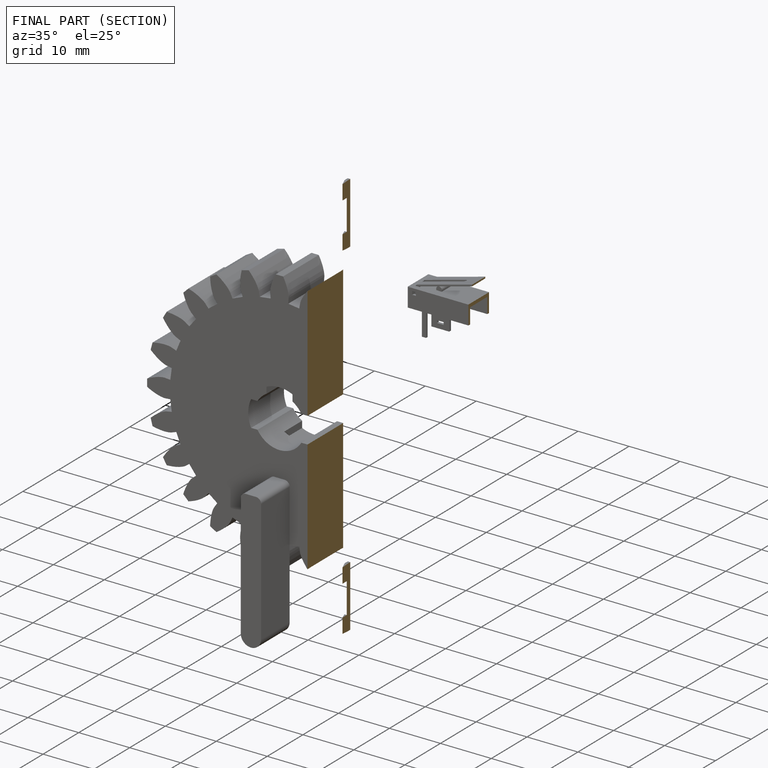
[diagram: finished part — half-section view (interior)]
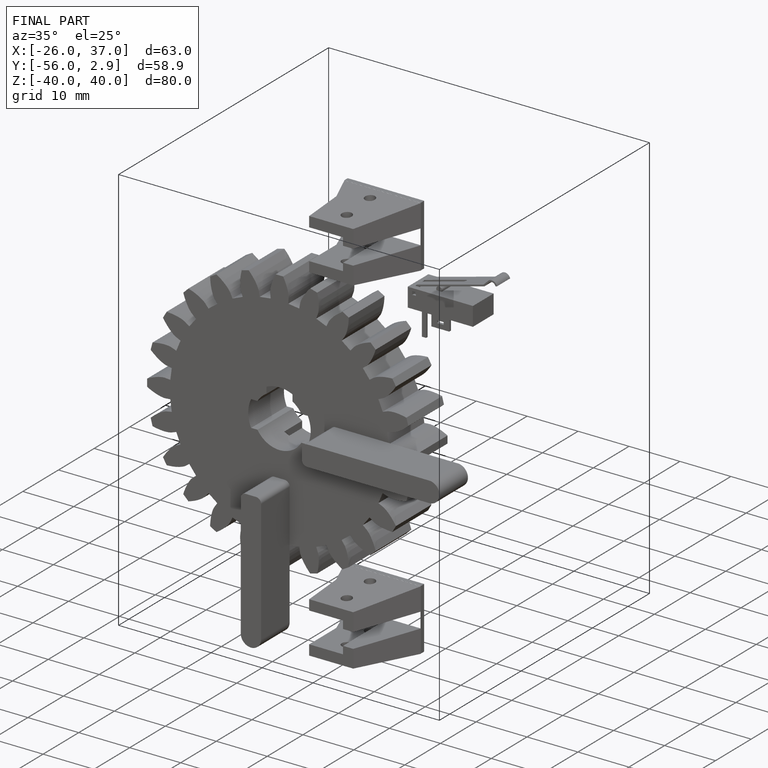
[diagram: finished part — iso view with bounding-box wireframe]
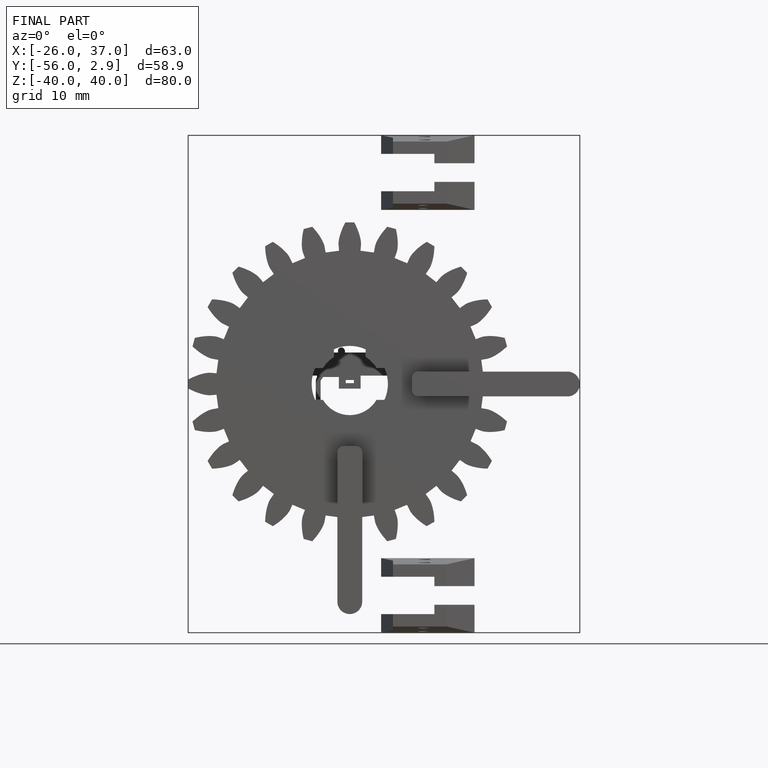
[diagram: finished part — front view with bounding-box wireframe]
